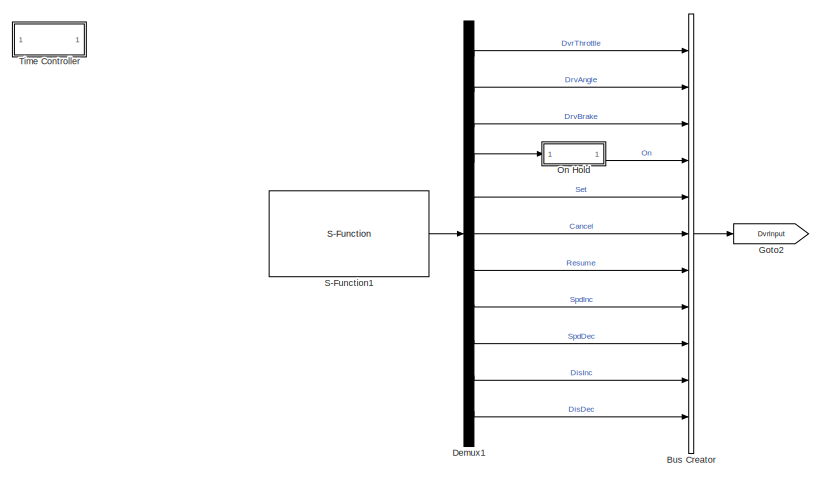
[diagram: root canvas - part 1/3, left side, full height]
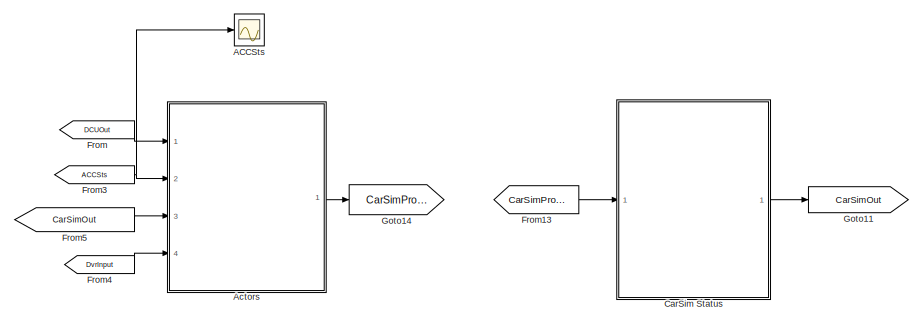
[diagram: root canvas - part 2/3, central region]
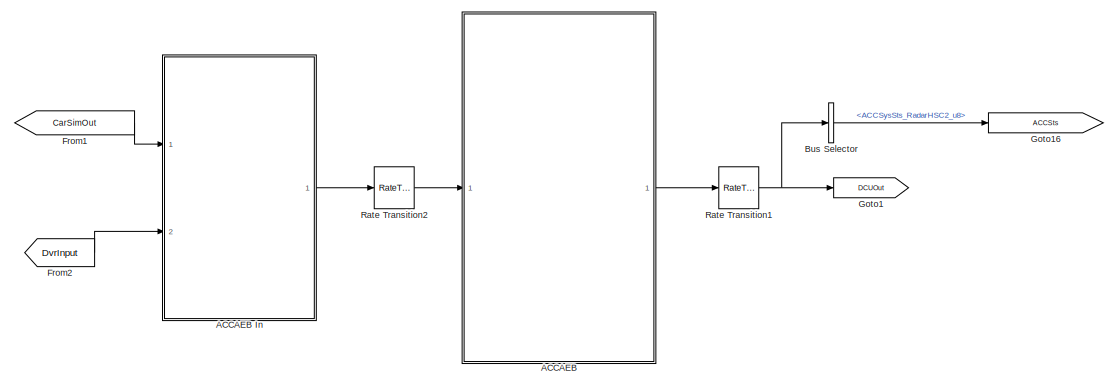
[diagram: root canvas - part 3/3, right side, full height]
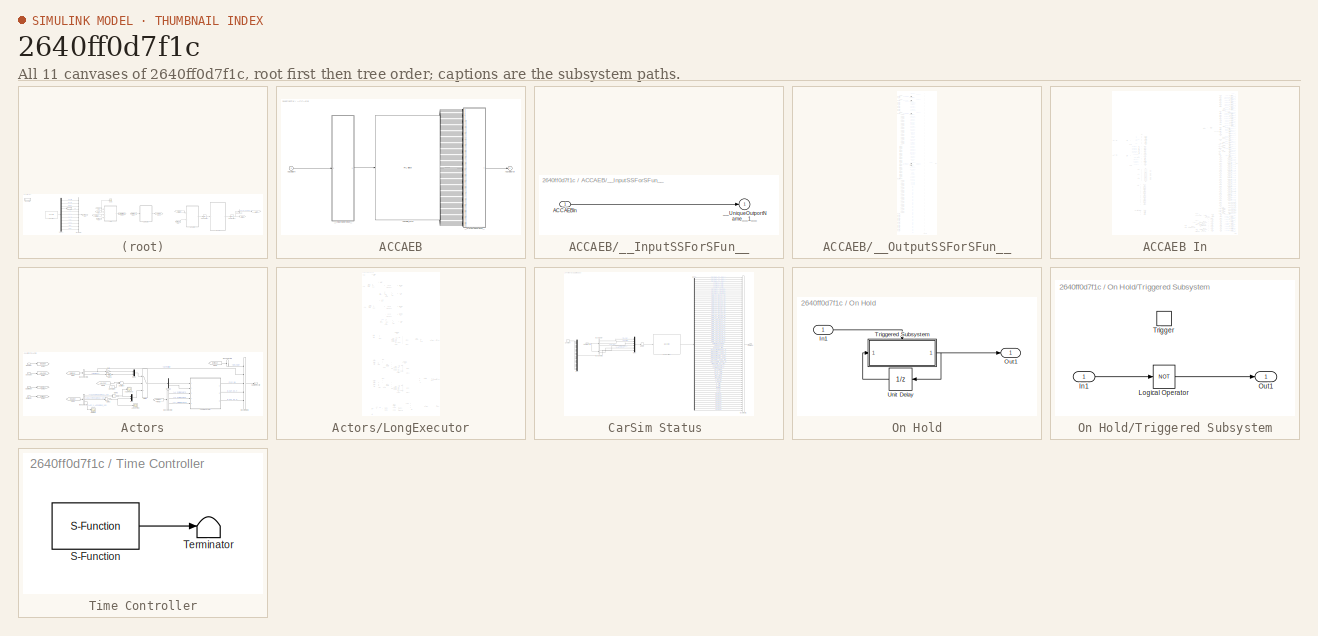
[diagram: thumbnail index - all 11 canvases of the model, root first then tree order]
MODEL slx_2640ff0d7f1c
KIND model
CONFIG AbsTol = 1e-6
CONFIG FixedStep = 0.001
CONFIG InitFcn = set_param(gcs,'StopTime','inf');
CONFIG MaxStep = auto
CONFIG MinStep = auto
CONFIG PreLoadFcn = PreSettings
CONFIG RelTol = 1e-3
CONFIG SampleTimeConstraint = Unconstrained
CONFIG Solver = FixedStepDiscrete
CONFIG SolverMode = SingleTasking
CONFIG SolverName = FixedStepDiscrete
CONFIG StartTime = 0
CONFIG StopTime = inf
BLOCK [SubSystem] ACCAEB
  DialogController = pil_create_dialog
  LoadFcn = try\n   if ~strcmp(rtw.pil.getPILVersion, '6.10 (R2016a)_12')\n      set_param(gcb, 'DialogController', '');\n      set_param(gcb, 'DialogControllerArgs', '');\n   end\ncatch e\n      set_param(gcb, 'DialogController', '');\n      set_param(gcb, 'DialogControllerArgs', '');\nend
  Ports = [1, 1]
  RequestExecContextInheritance = off
  Variant = off
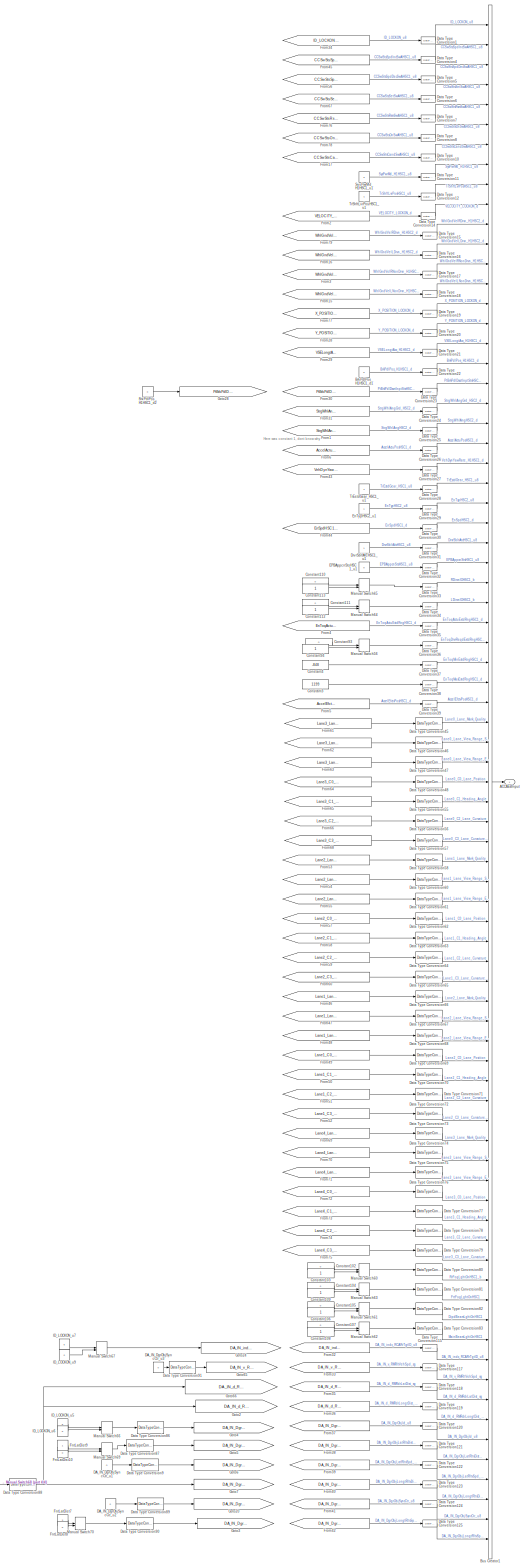
[diagram: ACCAEB In - part 1/4, right side, full height]
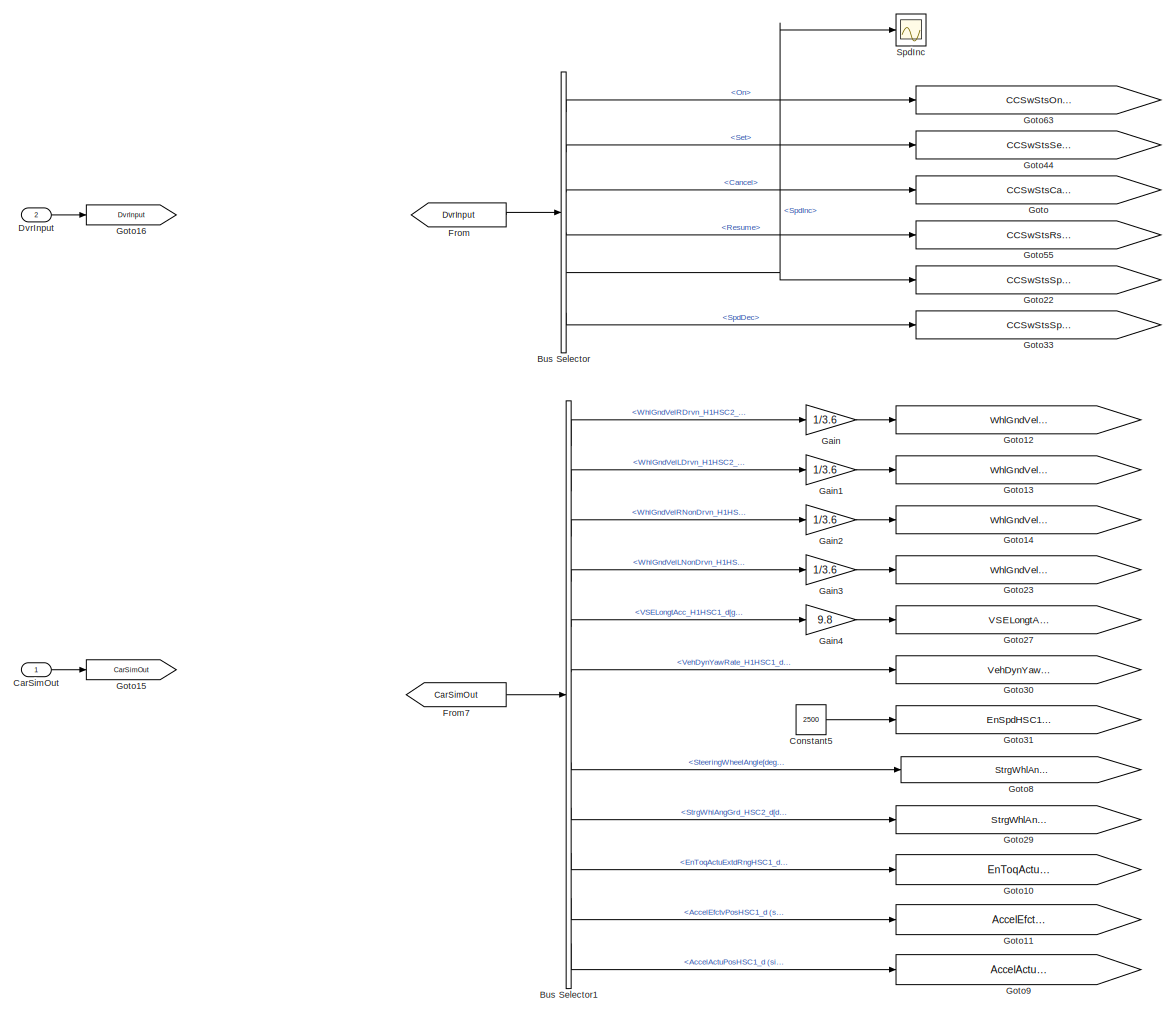
[diagram: ACCAEB In - part 2/4, middle left region]
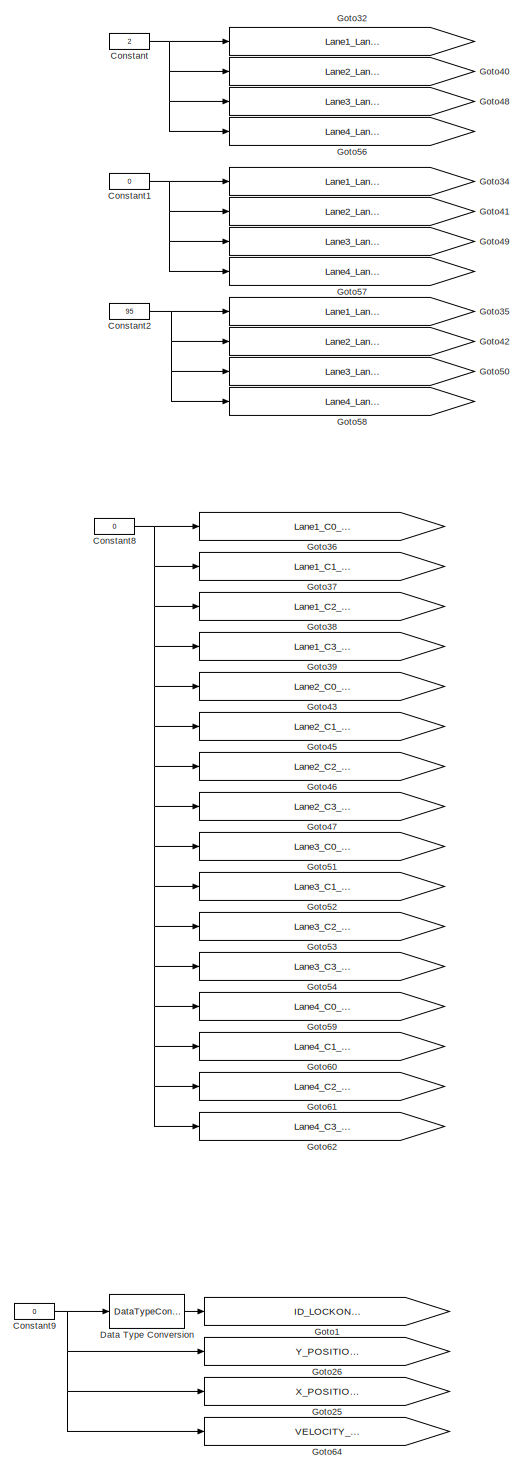
[diagram: ACCAEB In - part 3/4, bottom left region]
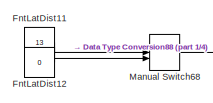
[diagram: ACCAEB In - part 4/4, bottom center region]
BLOCK [SubSystem] ACCAEB In
  Ports = [2, 1]
  RequestExecContextInheritance = off
  TreatAsAtomicUnit = on
  Variant = off
BLOCK [Outport] ACCAEB In/ACCAEBInput
  IconDisplay = Port number
  OutDataTypeStr = Bus: AccAebInputs
BLOCK [Constant] ACCAEB In/BrkPdlPos_H1HSC1_d1
  OutDataTypeStr = double
  Value = 0
BLOCK [Constant] ACCAEB In/BrkPdlPos_H1HSC1_d2
  OutDataTypeStr = uint8
  Value = 0
BLOCK [BusCreator] ACCAEB In/Bus Creator1
  DisplayOption = bar
  InheritFromInputs = on
  Inputs = 77
  Ports = [77, 1]
BLOCK [BusSelector] ACCAEB In/Bus Selector
  OutputSignals = On,Set,Cancel,Resume,SpdInc,SpdDec
  Ports = [1, 6]
BLOCK [BusSelector] ACCAEB In/Bus Selector1
  OutputSignals = WhlGndVelRDrvn_H1HSC2_d[km/h] (signal 38),WhlGndVelLDrvn_H1HSC2_d[km/h] (signal 39),WhlGndVelRNonDrvn_H1HSC2_d[km/h] (signal 40),WhlGndVelLNonDrvn_H1HSC2_d[km/h] (signal 41),VSELongtAcc_H1HSC1_d[g] (signal 42),VehDynYawRate_H1HSC1_d[deg/s] (signal 43),EnSpdHSC1_d[rpm] (signal 36),SteeringWheelAngle[deg] (signal 34),StrgWhlAngGrd_HSC2_d[deg/s] (signal 44),EnToqActuExtdRngHSC1_d[N M] (signal 37),Acc...<+59ch>
  Ports = [1, 12]
BLOCK [Inport] ACCAEB In/CarSimOut
  IconDisplay = Port number
BLOCK [Constant] ACCAEB In/Constant
  Value = 2
BLOCK [Constant] ACCAEB In/Constant1
  Value = 0
BLOCK [Constant] ACCAEB In/Constant102
  Value = 0
BLOCK [Constant] ACCAEB In/Constant103
BLOCK [Constant] ACCAEB In/Constant104
  Value = 0
BLOCK [Constant] ACCAEB In/Constant105
  Value = 0
BLOCK [Constant] ACCAEB In/Constant106
BLOCK [Constant] ACCAEB In/Constant107
  Value = 0
BLOCK [Constant] ACCAEB In/Constant108
BLOCK [Constant] ACCAEB In/Constant109
BLOCK [Constant] ACCAEB In/Constant110
  Value = 0
BLOCK [Constant] ACCAEB In/Constant111
  Value = 0
BLOCK [Constant] ACCAEB In/Constant112
BLOCK [Constant] ACCAEB In/Constant113
BLOCK [Constant] ACCAEB In/Constant2
  Value = 95
BLOCK [Constant] ACCAEB In/Constant3
  Value = 1199
BLOCK [Constant] ACCAEB In/Constant4
  Value = -848
BLOCK [Constant] ACCAEB In/Constant5
  Value = 2500
BLOCK [Constant] ACCAEB In/Constant8
  Value = 0
BLOCK [Constant] ACCAEB In/Constant9
  Value = 0
BLOCK [Constant] ACCAEB In/Constant93
  Value = 0
BLOCK [Constant] ACCAEB In/Constant94
BLOCK [Constant] ACCAEB In/DA_IN_DgrObjSyncCtr_u1
  OutDataTypeStr = uint8
  Value = 0
BLOCK [Constant] ACCAEB In/DA_IN_DgrObjSyncCtr_u2
  OutDataTypeStr = uint8
  Value = 0
BLOCK [Constant] ACCAEB In/DA_IN_DgrObjSyncCtr_u3
  OutDataTypeStr = uint8
  Value = 0
BLOCK [DataTypeConversion] ACCAEB In/Data Type Conversion
  OutDataTypeStr = uint8
  RndMeth = Floor
  SaturateOnIntegerOverflow = off
BLOCK [DataTypeConversion] ACCAEB In/Data Type Conversion1
  OutDataTypeStr = uint8
  RndMeth = Floor
  SaturateOnIntegerOverflow = off
BLOCK [DataTypeConversion] ACCAEB In/Data Type Conversion10
  OutDataTypeStr = uint8
  RndMeth = Floor
  SaturateOnIntegerOverflow = off
BLOCK [DataTypeConversion] ACCAEB In/Data Type Conversion11
  OutDataTypeStr = uint8
  RndMeth = Floor
  SaturateOnIntegerOverflow = off
BLOCK [DataTypeConversion] ACCAEB In/Data Type Conversion115
  OutDataTypeStr = uint8
  RndMeth = Floor
  SaturateOnIntegerOverflow = off
BLOCK [DataTypeConversion] ACCAEB In/Data Type Conversion117
  OutDataTypeStr = single
  RndMeth = Floor
  SaturateOnIntegerOverflow = off
BLOCK [DataTypeConversion] ACCAEB In/Data Type Conversion118
  OutDataTypeStr = single
  RndMeth = Floor
  SaturateOnIntegerOverflow = off
BLOCK [DataTypeConversion] ACCAEB In/Data Type Conversion119
  OutDataTypeStr = single
  RndMeth = Floor
  SaturateOnIntegerOverflow = off
BLOCK [DataTypeConversion] ACCAEB In/Data Type Conversion12
  OutDataTypeStr = uint8
  RndMeth = Floor
  SaturateOnIntegerOverflow = off
BLOCK [DataTypeConversion] ACCAEB In/Data Type Conversion120
  OutDataTypeStr = uint8
  RndMeth = Floor
  SaturateOnIntegerOverflow = off
BLOCK [DataTypeConversion] ACCAEB In/Data Type Conversion121
  OutDataTypeStr = single
  RndMeth = Floor
  SaturateOnIntegerOverflow = off
BLOCK [DataTypeConversion] ACCAEB In/Data Type Conversion122
  OutDataTypeStr = single
  RndMeth = Floor
  SaturateOnIntegerOverflow = off
BLOCK [DataTypeConversion] ACCAEB In/Data Type Conversion123
  OutDataTypeStr = single
  RndMeth = Floor
  SaturateOnIntegerOverflow = off
BLOCK [DataTypeConversion] ACCAEB In/Data Type Conversion124
  OutDataTypeStr = uint8
  RndMeth = Floor
  SaturateOnIntegerOverflow = off
BLOCK [DataTypeConversion] ACCAEB In/Data Type Conversion125
  OutDataTypeStr = single
  RndMeth = Floor
  SaturateOnIntegerOverflow = off
BLOCK [DataTypeConversion] ACCAEB In/Data Type Conversion14
  OutDataTypeStr = double
  RndMeth = Floor
  SaturateOnIntegerOverflow = off
BLOCK [DataTypeConversion] ACCAEB In/Data Type Conversion15
  OutDataTypeStr = double
  RndMeth = Floor
  SaturateOnIntegerOverflow = off
BLOCK [DataTypeConversion] ACCAEB In/Data Type Conversion16
  OutDataTypeStr = double
  RndMeth = Floor
  SaturateOnIntegerOverflow = off
BLOCK [DataTypeConversion] ACCAEB In/Data Type Conversion17
  OutDataTypeStr = double
  RndMeth = Floor
  SaturateOnIntegerOverflow = off
BLOCK [DataTypeConversion] ACCAEB In/Data Type Conversion18
  OutDataTypeStr = double
  RndMeth = Floor
  SaturateOnIntegerOverflow = off
BLOCK [DataTypeConversion] ACCAEB In/Data Type Conversion19
  OutDataTypeStr = double
  RndMeth = Floor
  SaturateOnIntegerOverflow = off
BLOCK [DataTypeConversion] ACCAEB In/Data Type Conversion20
  OutDataTypeStr = double
  RndMeth = Floor
  SaturateOnIntegerOverflow = off
BLOCK [DataTypeConversion] ACCAEB In/Data Type Conversion21
  OutDataTypeStr = double
  RndMeth = Floor
  SaturateOnIntegerOverflow = off
BLOCK [DataTypeConversion] ACCAEB In/Data Type Conversion22
  OutDataTypeStr = double
  RndMeth = Floor
  SaturateOnIntegerOverflow = off
BLOCK [DataTypeConversion] ACCAEB In/Data Type Conversion23
  OutDataTypeStr = uint8
  RndMeth = Floor
  SaturateOnIntegerOverflow = off
BLOCK [DataTypeConversion] ACCAEB In/Data Type Conversion24
  OutDataTypeStr = double
  RndMeth = Floor
  SaturateOnIntegerOverflow = off
BLOCK [DataTypeConversion] ACCAEB In/Data Type Conversion25
  OutDataTypeStr = double
  RndMeth = Floor
  SaturateOnIntegerOverflow = off
BLOCK [DataTypeConversion] ACCAEB In/Data Type Conversion26
  OutDataTypeStr = double
  RndMeth = Floor
  SaturateOnIntegerOverflow = off
BLOCK [DataTypeConversion] ACCAEB In/Data Type Conversion27
  OutDataTypeStr = double
  RndMeth = Floor
  SaturateOnIntegerOverflow = off
BLOCK [DataTypeConversion] ACCAEB In/Data Type Conversion28
  OutDataTypeStr = uint8
  RndMeth = Floor
  SaturateOnIntegerOverflow = off
BLOCK [DataTypeConversion] ACCAEB In/Data Type Conversion29
  OutDataTypeStr = uint8
  RndMeth = Floor
  SaturateOnIntegerOverflow = off
BLOCK [DataTypeConversion] ACCAEB In/Data Type Conversion30
  OutDataTypeStr = double
  RndMeth = Floor
  SaturateOnIntegerOverflow = off
BLOCK [DataTypeConversion] ACCAEB In/Data Type Conversion31
  OutDataTypeStr = uint8
  RndMeth = Floor
  SaturateOnIntegerOverflow = off
BLOCK [DataTypeConversion] ACCAEB In/Data Type Conversion32
  OutDataTypeStr = uint8
  RndMeth = Floor
  SaturateOnIntegerOverflow = off
BLOCK [DataTypeConversion] ACCAEB In/Data Type Conversion33
  OutDataTypeStr = boolean
  RndMeth = Floor
  SaturateOnIntegerOverflow = off
BLOCK [DataTypeConversion] ACCAEB In/Data Type Conversion34
  OutDataTypeStr = boolean
  RndMeth = Floor
  SaturateOnIntegerOverflow = off
BLOCK [DataTypeConversion] ACCAEB In/Data Type Conversion35
  OutDataTypeStr = double
  RndMeth = Floor
  SaturateOnIntegerOverflow = off
BLOCK [DataTypeConversion] ACCAEB In/Data Type Conversion36
  OutDataTypeStr = double
  RndMeth = Floor
  SaturateOnIntegerOverflow = off
BLOCK [DataTypeConversion] ACCAEB In/Data Type Conversion37
  OutDataTypeStr = double
  RndMeth = Floor
  SaturateOnIntegerOverflow = off
BLOCK [DataTypeConversion] ACCAEB In/Data Type Conversion38
  OutDataTypeStr = double
  RndMeth = Floor
  SaturateOnIntegerOverflow = off
BLOCK [DataTypeConversion] ACCAEB In/Data Type Conversion39
  OutDataTypeStr = double
  RndMeth = Floor
  SaturateOnIntegerOverflow = off
BLOCK [DataTypeConversion] ACCAEB In/Data Type Conversion4
  OutDataTypeStr = uint8
  RndMeth = Floor
  SaturateOnIntegerOverflow = off
BLOCK [DataTypeConversion] ACCAEB In/Data Type Conversion45
  OutDataTypeStr = uint8
  RndMeth = Floor
  SaturateOnIntegerOverflow = off
BLOCK [DataTypeConversion] ACCAEB In/Data Type Conversion46
  RndMeth = Floor
  SaturateOnIntegerOverflow = off
BLOCK [DataTypeConversion] ACCAEB In/Data Type Conversion47
  RndMeth = Floor
  SaturateOnIntegerOverflow = off
BLOCK [DataTypeConversion] ACCAEB In/Data Type Conversion48
  RndMeth = Floor
  SaturateOnIntegerOverflow = off
BLOCK [DataTypeConversion] ACCAEB In/Data Type Conversion5
  OutDataTypeStr = uint8
  RndMeth = Floor
  SaturateOnIntegerOverflow = off
BLOCK [DataTypeConversion] ACCAEB In/Data Type Conversion55
  RndMeth = Floor
  SaturateOnIntegerOverflow = off
BLOCK [DataTypeConversion] ACCAEB In/Data Type Conversion56
  RndMeth = Floor
  SaturateOnIntegerOverflow = off
BLOCK [DataTypeConversion] ACCAEB In/Data Type Conversion57
  RndMeth = Floor
  SaturateOnIntegerOverflow = off
BLOCK [DataTypeConversion] ACCAEB In/Data Type Conversion58
  OutDataTypeStr = uint8
  RndMeth = Floor
  SaturateOnIntegerOverflow = off
BLOCK [DataTypeConversion] ACCAEB In/Data Type Conversion6
  OutDataTypeStr = uint8
  RndMeth = Floor
  SaturateOnIntegerOverflow = off
BLOCK [DataTypeConversion] ACCAEB In/Data Type Conversion60
  RndMeth = Floor
  SaturateOnIntegerOverflow = off
BLOCK [DataTypeConversion] ACCAEB In/Data Type Conversion61
  RndMeth = Floor
  SaturateOnIntegerOverflow = off
BLOCK [DataTypeConversion] ACCAEB In/Data Type Conversion62
  RndMeth = Floor
  SaturateOnIntegerOverflow = off
BLOCK [DataTypeConversion] ACCAEB In/Data Type Conversion63
  RndMeth = Floor
  SaturateOnIntegerOverflow = off
BLOCK [DataTypeConversion] ACCAEB In/Data Type Conversion64
  RndMeth = Floor
  SaturateOnIntegerOverflow = off
BLOCK [DataTypeConversion] ACCAEB In/Data Type Conversion65
  RndMeth = Floor
  SaturateOnIntegerOverflow = off
BLOCK [DataTypeConversion] ACCAEB In/Data Type Conversion66
  OutDataTypeStr = uint8
  RndMeth = Floor
  SaturateOnIntegerOverflow = off
BLOCK [DataTypeConversion] ACCAEB In/Data Type Conversion67
  RndMeth = Floor
  SaturateOnIntegerOverflow = off
BLOCK [DataTypeConversion] ACCAEB In/Data Type Conversion68
  RndMeth = Floor
  SaturateOnIntegerOverflow = off
BLOCK [DataTypeConversion] ACCAEB In/Data Type Conversion69
  RndMeth = Floor
  SaturateOnIntegerOverflow = off
BLOCK [DataTypeConversion] ACCAEB In/Data Type Conversion7
  OutDataTypeStr = uint8
  RndMeth = Floor
  SaturateOnIntegerOverflow = off
BLOCK [DataTypeConversion] ACCAEB In/Data Type Conversion70
  RndMeth = Floor
  SaturateOnIntegerOverflow = off
BLOCK [DataTypeConversion] ACCAEB In/Data Type Conversion71
  RndMeth = Floor
  SaturateOnIntegerOverflow = off
BLOCK [DataTypeConversion] ACCAEB In/Data Type Conversion72
  RndMeth = Floor
  SaturateOnIntegerOverflow = off
BLOCK [DataTypeConversion] ACCAEB In/Data Type Conversion73
  OutDataTypeStr = uint8
  RndMeth = Floor
  SaturateOnIntegerOverflow = off
BLOCK [DataTypeConversion] ACCAEB In/Data Type Conversion74
  RndMeth = Floor
  SaturateOnIntegerOverflow = off
BLOCK [DataTypeConversion] ACCAEB In/Data Type Conversion75
  RndMeth = Floor
  SaturateOnIntegerOverflow = off
BLOCK [DataTypeConversion] ACCAEB In/Data Type Conversion76
  RndMeth = Floor
  SaturateOnIntegerOverflow = off
BLOCK [DataTypeConversion] ACCAEB In/Data Type Conversion77
  RndMeth = Floor
  SaturateOnIntegerOverflow = off
BLOCK [DataTypeConversion] ACCAEB In/Data Type Conversion78
  RndMeth = Floor
  SaturateOnIntegerOverflow = off
BLOCK [DataTypeConversion] ACCAEB In/Data Type Conversion79
  RndMeth = Floor
  SaturateOnIntegerOverflow = off
BLOCK [DataTypeConversion] ACCAEB In/Data Type Conversion8
  OutDataTypeStr = uint8
  RndMeth = Floor
  SaturateOnIntegerOverflow = off
BLOCK [DataTypeConversion] ACCAEB In/Data Type Conversion80
  OutDataTypeStr = boolean
  RndMeth = Floor
  SaturateOnIntegerOverflow = off
BLOCK [DataTypeConversion] ACCAEB In/Data Type Conversion81
  OutDataTypeStr = boolean
  RndMeth = Floor
  SaturateOnIntegerOverflow = off
BLOCK [DataTypeConversion] ACCAEB In/Data Type Conversion82
  OutDataTypeStr = boolean
  RndMeth = Floor
  SaturateOnIntegerOverflow = off
BLOCK [DataTypeConversion] ACCAEB In/Data Type Conversion83
  OutDataTypeStr = boolean
  RndMeth = Floor
  SaturateOnIntegerOverflow = off
BLOCK [DataTypeConversion] ACCAEB In/Data Type Conversion86
  OutDataTypeStr = uint8
  RndMeth = Floor
  SaturateOnIntegerOverflow = off
BLOCK [DataTypeConversion] ACCAEB In/Data Type Conversion87
  OutDataTypeStr = single
  RndMeth = Floor
  SaturateOnIntegerOverflow = off
BLOCK [DataTypeConversion] ACCAEB In/Data Type Conversion88
  OutDataTypeStr = single
  RndMeth = Floor
  SaturateOnIntegerOverflow = off
BLOCK [DataTypeConversion] ACCAEB In/Data Type Conversion89
  OutDataTypeStr = uint8
  RndMeth = Floor
  SaturateOnIntegerOverflow = off
BLOCK [DataTypeConversion] ACCAEB In/Data Type Conversion9
  OutDataTypeStr = single
  RndMeth = Floor
  SaturateOnIntegerOverflow = off
BLOCK [DataTypeConversion] ACCAEB In/Data Type Conversion90
  OutDataTypeStr = single
  RndMeth = Floor
  SaturateOnIntegerOverflow = off
BLOCK [DataTypeConversion] ACCAEB In/Data Type Conversion91
  OutDataTypeStr = single
  RndMeth = Floor
  SaturateOnIntegerOverflow = off
BLOCK [Constant] ACCAEB In/DrvrSbltAtcHSC1_u1
  OutDataTypeStr = uint8
BLOCK [Inport] ACCAEB In/DvrInput
  IconDisplay = Port number
  Port = 2
BLOCK [Constant] ACCAEB In/EPBAppcnStsHSC1_u1
  OutDataTypeStr = uint8
  Value = 0
BLOCK [Constant] ACCAEB In/EnTypHSC2_u1
  OutDataTypeStr = uint8
BLOCK [Constant] ACCAEB In/FntLatDist10
  AttributesFormatString = %<OutDataTypeStr>
  OutDataTypeStr = double
  Value = 0
BLOCK [Constant] ACCAEB In/FntLatDist11
  AttributesFormatString = %<OutDataTypeStr>
  OutDataTypeStr = double
  Value = 13
BLOCK [Constant] ACCAEB In/FntLatDist12
  AttributesFormatString = %<OutDataTypeStr>
  OutDataTypeStr = double
  Value = 0
BLOCK [Constant] ACCAEB In/FntLatDist7
  AttributesFormatString = %<OutDataTypeStr>
  OutDataTypeStr = double
  Value = 3
BLOCK [Constant] ACCAEB In/FntLatDist8
  AttributesFormatString = %<OutDataTypeStr>
  OutDataTypeStr = double
  Value = 0
BLOCK [Constant] ACCAEB In/FntLatDist9
  AttributesFormatString = %<OutDataTypeStr>
  OutDataTypeStr = double
BLOCK [From] ACCAEB In/From
  GotoTag = DvrInput
BLOCK [From] ACCAEB In/From1
  GotoTag = StrgWhlAngHSC2_d
BLOCK [From] ACCAEB In/From15
  GotoTag = WhlGndVelLNonDrvn_H1HSC2_d
BLOCK [From] ACCAEB In/From16
  GotoTag = WhlGndVelLDrvn_H1HSC2_d
BLOCK [From] ACCAEB In/From17
  GotoTag = CCSwStsCanclSwAHSC1_u8
BLOCK [From] ACCAEB In/From2
  GotoTag = VELOCITY_LOCKON_d
BLOCK [From] ACCAEB In/From28
  GotoTag = Y_POSITION_LOCKON_d
BLOCK [From] ACCAEB In/From29
  GotoTag = VSELongtAcc_H1HSC1_d
BLOCK [From] ACCAEB In/From3
  GotoTag = WhlGndVelRNonDrvn_H1HSC2_d
BLOCK [From] ACCAEB In/From30
  GotoTag = PtBrkPdlDscrtInptStsHSC1_u8
BLOCK [From] ACCAEB In/From31
  GotoTag = StrgWhlAngGrd_HSC2_d
BLOCK [From] ACCAEB In/From32
  GotoTag = DA_IN_indx_RCARrTgtID_u8
BLOCK [From] ACCAEB In/From33
  GotoTag = DA_IN_v_RMRltVehSpd_sg
BLOCK [From] ACCAEB In/From34
  GotoTag = ID_LOCKON_u8
BLOCK [From] ACCAEB In/From35
  GotoTag = DA_IN_d_RMRdrLatDist_sg
BLOCK [From] ACCAEB In/From36
  GotoTag = DA_IN_d_RMRdrLongtDist_sg
BLOCK [From] ACCAEB In/From37
  GotoTag = DA_IN_DgrObjId_u8
BLOCK [From] ACCAEB In/From38
  GotoTag = DA_IN_DgrObjLatRltvDist_sg
BLOCK [From] ACCAEB In/From39
  GotoTag = DA_IN_DgrObjLatRltvSpd_sg
BLOCK [From] ACCAEB In/From4
  GotoTag = EnToqActuExtdRngHSC1_d
BLOCK [From] ACCAEB In/From40
  GotoTag = DA_IN_DgrObjLongtRltvDist_sg
BLOCK [From] ACCAEB In/From41
  GotoTag = DA_IN_DgrObjSyncCtr_u8
BLOCK [From] ACCAEB In/From42
  GotoTag = DA_IN_DgrObjLongtRltvSpd_sg
BLOCK [From] ACCAEB In/From43
  GotoTag = VehDynYawRate_H1HSC1_d
BLOCK [From] ACCAEB In/From44
  GotoTag = EnSpdHSC1_d
BLOCK [From] ACCAEB In/From45
  GotoTag = CCSwStsSpdIncSwAHSC1_u8
BLOCK [From] ACCAEB In/From46
  GotoTag = Lane1_Lane_Mark_Quality
BLOCK [From] ACCAEB In/From47
  GotoTag = Lane1_Lane_View_Range_Start
BLOCK [From] ACCAEB In/From48
  GotoTag = Lane1_Lane_View_Range_End
BLOCK [From] ACCAEB In/From49
  GotoTag = Lane1_C0_Lane_Position
BLOCK [From] ACCAEB In/From5
  GotoTag = AccelEfctvPosHSC1_d
BLOCK [From] ACCAEB In/From50
  GotoTag = Lane1_C1_Heading_Angle
BLOCK [From] ACCAEB In/From51
  GotoTag = Lane1_C2_Lane_Curvature
BLOCK [From] ACCAEB In/From52
  GotoTag = Lane1_C3_Lane_Curvature_Driv
BLOCK [From] ACCAEB In/From53
  GotoTag = Lane2_Lane_Mark_Quality
BLOCK [From] ACCAEB In/From54
  GotoTag = Lane2_Lane_View_Range_Start
BLOCK [From] ACCAEB In/From55
  GotoTag = Lane2_Lane_View_Range_End
BLOCK [From] ACCAEB In/From56
  GotoTag = CCSwStsSpdDecSwAHSC1_u8
BLOCK [From] ACCAEB In/From57
  GotoTag = Lane2_C0_Lane_Position
BLOCK [From] ACCAEB In/From58
  GotoTag = Lane2_C1_Heading_Angle
BLOCK [From] ACCAEB In/From59
  GotoTag = Lane2_C2_Lane_Curvature
BLOCK [From] ACCAEB In/From6
  GotoTag = AccelActuPosHSC1_d
BLOCK [From] ACCAEB In/From60
  GotoTag = Lane2_C3_Lane_Curvature_Driv
BLOCK [From] ACCAEB In/From61
  GotoTag = Lane3_Lane_Mark_Quality
BLOCK [From] ACCAEB In/From62
  GotoTag = Lane3_Lane_View_Range_Start
BLOCK [From] ACCAEB In/From63
  GotoTag = Lane3_Lane_View_Range_End
BLOCK [From] ACCAEB In/From64
  GotoTag = Lane3_C0_Lane_Position
BLOCK [From] ACCAEB In/From65
  GotoTag = Lane3_C1_Heading_Angle
BLOCK [From] ACCAEB In/From66
  GotoTag = Lane3_C2_Lane_Curvature
BLOCK [From] ACCAEB In/From67
  GotoTag = CCSwStsSetSwAHSC1_u8
BLOCK [From] ACCAEB In/From68
  GotoTag = Lane3_C3_Lane_Curvature_Driv
BLOCK [From] ACCAEB In/From69
  GotoTag = Lane4_Lane_Mark_Quality
BLOCK [From] ACCAEB In/From7
  GotoTag = CarSimOut
BLOCK [From] ACCAEB In/From70
  GotoTag = Lane4_Lane_View_Range_Start
BLOCK [From] ACCAEB In/From71
  GotoTag = Lane4_Lane_View_Range_End
BLOCK [From] ACCAEB In/From72
  GotoTag = Lane4_C0_Lane_Position
BLOCK [From] ACCAEB In/From73
  GotoTag = Lane4_C1_Heading_Angle
BLOCK [From] ACCAEB In/From74
  GotoTag = Lane4_C2_Lane_Curvature
BLOCK [From] ACCAEB In/From75
  GotoTag = Lane4_C3_Lane_Curvature_Driv
BLOCK [From] ACCAEB In/From76
  GotoTag = CCSwStsRsmSwAHSC1_u8
BLOCK [From] ACCAEB In/From77
  GotoTag = X_POSITION_LOCKON_d
BLOCK [From] ACCAEB In/From78
  GotoTag = CCSwStsOnSwAHSC1_u8
BLOCK [From] ACCAEB In/From79
  GotoTag = WhlGndVelRDrvn_H1HSC2_d
BLOCK [Gain] ACCAEB In/Gain
  Gain = 1/3.6
  OutDataTypeStr = Inherit: Inherit via internal rule
  ParamDataTypeStr = Inherit: Inherit via internal rule
  SaturateOnIntegerOverflow = off
BLOCK [Gain] ACCAEB In/Gain1
  Gain = 1/3.6
  OutDataTypeStr = Inherit: Inherit via internal rule
  ParamDataTypeStr = Inherit: Inherit via internal rule
  SaturateOnIntegerOverflow = off
BLOCK [Gain] ACCAEB In/Gain2
  Gain = 1/3.6
  OutDataTypeStr = Inherit: Inherit via internal rule
  ParamDataTypeStr = Inherit: Inherit via internal rule
  SaturateOnIntegerOverflow = off
BLOCK [Gain] ACCAEB In/Gain3
  Gain = 1/3.6
  OutDataTypeStr = Inherit: Inherit via internal rule
  ParamDataTypeStr = Inherit: Inherit via internal rule
  SaturateOnIntegerOverflow = off
BLOCK [Gain] ACCAEB In/Gain4
  Gain = 9.8
  OutDataTypeStr = Inherit: Inherit via internal rule
  ParamDataTypeStr = Inherit: Inherit via internal rule
  SaturateOnIntegerOverflow = off
BLOCK [Goto] ACCAEB In/Goto
  GotoTag = CCSwStsCanclSwAHSC1_u8
BLOCK [Goto] ACCAEB In/Goto1
  GotoTag = ID_LOCKON_u8
BLOCK [Goto] ACCAEB In/Goto10
  GotoTag = EnToqActuExtdRngHSC1_d
BLOCK [Goto] ACCAEB In/Goto11
  GotoTag = AccelEfctvPosHSC1_d
BLOCK [Goto] ACCAEB In/Goto12
  GotoTag = WhlGndVelRDrvn_H1HSC2_d
BLOCK [Goto] ACCAEB In/Goto13
  GotoTag = WhlGndVelLDrvn_H1HSC2_d
BLOCK [Goto] ACCAEB In/Goto14
  GotoTag = WhlGndVelRNonDrvn_H1HSC2_d
BLOCK [Goto] ACCAEB In/Goto15
  GotoTag = CarSimOut
BLOCK [Goto] ACCAEB In/Goto16
  GotoTag = DvrInput
BLOCK [Goto] ACCAEB In/Goto2
  GotoTag = DA_IN_d_RMRdrLongtDist_sg
BLOCK [Goto] ACCAEB In/Goto20
  GotoTag = DA_IN_DgrObjSyncCtr_u8
BLOCK [Goto] ACCAEB In/Goto22
  GotoTag = CCSwStsSpdIncSwAHSC1_u8
BLOCK [Goto] ACCAEB In/Goto23
  GotoTag = WhlGndVelLNonDrvn_H1HSC2_d
BLOCK [Goto] ACCAEB In/Goto24
  GotoTag = DA_IN_indx_RCARrTgtID_u8
BLOCK [Goto] ACCAEB In/Goto25
  GotoTag = X_POSITION_LOCKON_d
BLOCK [Goto] ACCAEB In/Goto26
  GotoTag = Y_POSITION_LOCKON_d
BLOCK [Goto] ACCAEB In/Goto27
  GotoTag = VSELongtAcc_H1HSC1_d
BLOCK [Goto] ACCAEB In/Goto28
  GotoTag = PtBrkPdlDscrtInptStsHSC1_u8
BLOCK [Goto] ACCAEB In/Goto29
  GotoTag = StrgWhlAngGrd_HSC2_d
BLOCK [Goto] ACCAEB In/Goto3
  GotoTag = DA_IN_DgrObjLongtRltvSpd_sg
BLOCK [Goto] ACCAEB In/Goto30
  GotoTag = VehDynYawRate_H1HSC1_d
BLOCK [Goto] ACCAEB In/Goto31
  GotoTag = EnSpdHSC1_d
BLOCK [Goto] ACCAEB In/Goto32
  GotoTag = Lane1_Lane_Mark_Quality
BLOCK [Goto] ACCAEB In/Goto33
  GotoTag = CCSwStsSpdDecSwAHSC1_u8
BLOCK [Goto] ACCAEB In/Goto34
  GotoTag = Lane1_Lane_View_Range_Start
BLOCK [Goto] ACCAEB In/Goto35
  GotoTag = Lane1_Lane_View_Range_End
BLOCK [Goto] ACCAEB In/Goto36
  GotoTag = Lane1_C0_Lane_Position
BLOCK [Goto] ACCAEB In/Goto37
  GotoTag = Lane1_C1_Heading_Angle
BLOCK [Goto] ACCAEB In/Goto38
  GotoTag = Lane1_C2_Lane_Curvature
BLOCK [Goto] ACCAEB In/Goto39
  GotoTag = Lane1_C3_Lane_Curvature_Driv
BLOCK [Goto] ACCAEB In/Goto4
  GotoTag = DA_IN_DgrObjId_u8
BLOCK [Goto] ACCAEB In/Goto40
  GotoTag = Lane2_Lane_Mark_Quality
BLOCK [Goto] ACCAEB In/Goto41
  GotoTag = Lane2_Lane_View_Range_Start
BLOCK [Goto] ACCAEB In/Goto42
  GotoTag = Lane2_Lane_View_Range_End
BLOCK [Goto] ACCAEB In/Goto43
  GotoTag = Lane2_C0_Lane_Position
BLOCK [Goto] ACCAEB In/Goto44
  GotoTag = CCSwStsSetSwAHSC1_u8
BLOCK [Goto] ACCAEB In/Goto45
  GotoTag = Lane2_C1_Heading_Angle
BLOCK [Goto] ACCAEB In/Goto46
  GotoTag = Lane2_C2_Lane_Curvature
BLOCK [Goto] ACCAEB In/Goto47
  GotoTag = Lane2_C3_Lane_Curvature_Driv
BLOCK [Goto] ACCAEB In/Goto48
  GotoTag = Lane3_Lane_Mark_Quality
BLOCK [Goto] ACCAEB In/Goto49
  GotoTag = Lane3_Lane_View_Range_Start
BLOCK [Goto] ACCAEB In/Goto5
  GotoTag = DA_IN_DgrObjLatRltvDist_sg
BLOCK [Goto] ACCAEB In/Goto50
  GotoTag = Lane3_Lane_View_Range_End
BLOCK [Goto] ACCAEB In/Goto51
  GotoTag = Lane3_C0_Lane_Position
BLOCK [Goto] ACCAEB In/Goto52
  GotoTag = Lane3_C1_Heading_Angle
BLOCK [Goto] ACCAEB In/Goto53
  GotoTag = Lane3_C2_Lane_Curvature
BLOCK [Goto] ACCAEB In/Goto54
  GotoTag = Lane3_C3_Lane_Curvature_Driv
BLOCK [Goto] ACCAEB In/Goto55
  GotoTag = CCSwStsRsmSwAHSC1_u8
BLOCK [Goto] ACCAEB In/Goto56
  GotoTag = Lane4_Lane_Mark_Quality
BLOCK [Goto] ACCAEB In/Goto57
  GotoTag = Lane4_Lane_View_Range_Start
BLOCK [Goto] ACCAEB In/Goto58
  GotoTag = Lane4_Lane_View_Range_End
BLOCK [Goto] ACCAEB In/Goto59
  GotoTag = Lane4_C0_Lane_Position
BLOCK [Goto] ACCAEB In/Goto6
  GotoTag = DA_IN_DgrObjLatRltvSpd_sg
BLOCK [Goto] ACCAEB In/Goto60
  GotoTag = Lane4_C1_Heading_Angle
BLOCK [Goto] ACCAEB In/Goto61
  GotoTag = Lane4_C2_Lane_Curvature
BLOCK [Goto] ACCAEB In/Goto62
  GotoTag = Lane4_C3_Lane_Curvature_Driv
BLOCK [Goto] ACCAEB In/Goto63
  GotoTag = CCSwStsOnSwAHSC1_u8
BLOCK [Goto] ACCAEB In/Goto64
  GotoTag = VELOCITY_LOCKON_d
BLOCK [Goto] ACCAEB In/Goto65
  GotoTag = DA_IN_v_RMRltVehSpd_sg
BLOCK [Goto] ACCAEB In/Goto66
  GotoTag = DA_IN_d_RMRdrLatDist_sg
BLOCK [Goto] ACCAEB In/Goto7
  GotoTag = DA_IN_DgrObjLongtRltvDist_sg
BLOCK [Goto] ACCAEB In/Goto8
  GotoTag = StrgWhlAngHSC2_d
BLOCK [Goto] ACCAEB In/Goto9
  GotoTag = AccelActuPosHSC1_d
BLOCK [Constant] ACCAEB In/ID_LOCKON_u5
  OutDataTypeStr = uint8
  Value = 5
BLOCK [Constant] ACCAEB In/ID_LOCKON_u6
  OutDataTypeStr = uint8
  Value = 0
BLOCK [Constant] ACCAEB In/ID_LOCKON_u7
  OutDataTypeStr = uint8
  Value = 5
BLOCK [Constant] ACCAEB In/ID_LOCKON_u9
  OutDataTypeStr = uint8
  Value = 0
BLOCK [ManualSwitch] ACCAEB In/Manual Switch56
BLOCK [ManualSwitch] ACCAEB In/Manual Switch60
BLOCK [ManualSwitch] ACCAEB In/Manual Switch61
BLOCK [ManualSwitch] ACCAEB In/Manual Switch62
BLOCK [ManualSwitch] ACCAEB In/Manual Switch63
BLOCK [ManualSwitch] ACCAEB In/Manual Switch64
BLOCK [ManualSwitch] ACCAEB In/Manual Switch65
BLOCK [ManualSwitch] ACCAEB In/Manual Switch66
BLOCK [ManualSwitch] ACCAEB In/Manual Switch67
BLOCK [ManualSwitch] ACCAEB In/Manual Switch68
BLOCK [ManualSwitch] ACCAEB In/Manual Switch69
BLOCK [ManualSwitch] ACCAEB In/Manual Switch70
BLOCK [Scope] ACCAEB In/SpdInc
  Ports = [1]
  ScopeSpecificationString = Simulink.scopes.TimeScopeBlockCfg('CurrentConfiguration', extmgr.ConfigurationSet(extmgr.Configuration('Core','General UI',true),extmgr.Configuration('Core','Source UI',true),extmgr.Configuration('Sources','WiredSimulink',true),extmgr.Configuration('Visuals','Time Domain',true,'SerializedDisplays',{struct('MinYLimReal','-1.00000','MaxYLimReal','1.00000','YLabelReal','','MinYLimMag','0.00000','MaxY...<+1358ch>
BLOCK [Constant] ACCAEB In/SysPwrMd_H1HSC1_u1
  AttributesFormatString = %<DataType=%<OutDataTypeStr>>
  OutDataTypeStr = uint8
  Value = 3
BLOCK [Constant] ACCAEB In/TrEstdGear_HSC1_u1
  OutDataTypeStr = uint8
  Value = 4
BLOCK [Constant] ACCAEB In/TrShftLvrPosHSC1_u1
  OutDataTypeStr = uint8
  Value = 4
BLOCK [Inport] ACCAEB/ACCAEBIn
  BusOutputAsStruct = on
  IconDisplay = Port number
  OutDataTypeStr = Bus: AccAebInputs
BLOCK [Outport] ACCAEB/ACCAEBOut
  IconDisplay = Port number
BLOCK [Reference] ACCAEB/ACCAEB_sfcn  REF=pil_lib/PIL Block
  Ports = [1, 98]
  SourceBlock = pil_lib/PIL Block
BLOCK [SubSystem] ACCAEB/__InputSSForSFun__
  PermitHierarchicalResolution = ExplicitOnly
  Ports = [1, 1]
  RequestExecContextInheritance = off
  Variant = off
BLOCK [Inport] ACCAEB/__InputSSForSFun__/ACCAEBIn
  BusOutputAsStruct = on
  IconDisplay = Port number
  OutDataTypeStr = Bus: AccAebInputs
BLOCK [Outport] ACCAEB/__InputSSForSFun__/__UniqueOutportName__1__
  IconDisplay = Port number
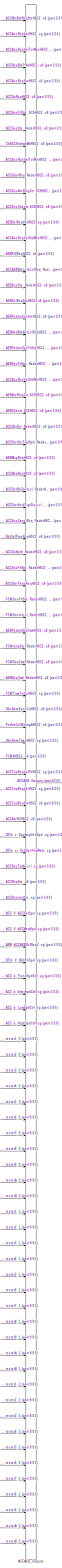
[diagram: ACCAEB/__OutputSSForSFun__ - part 1/10, right side, full height]
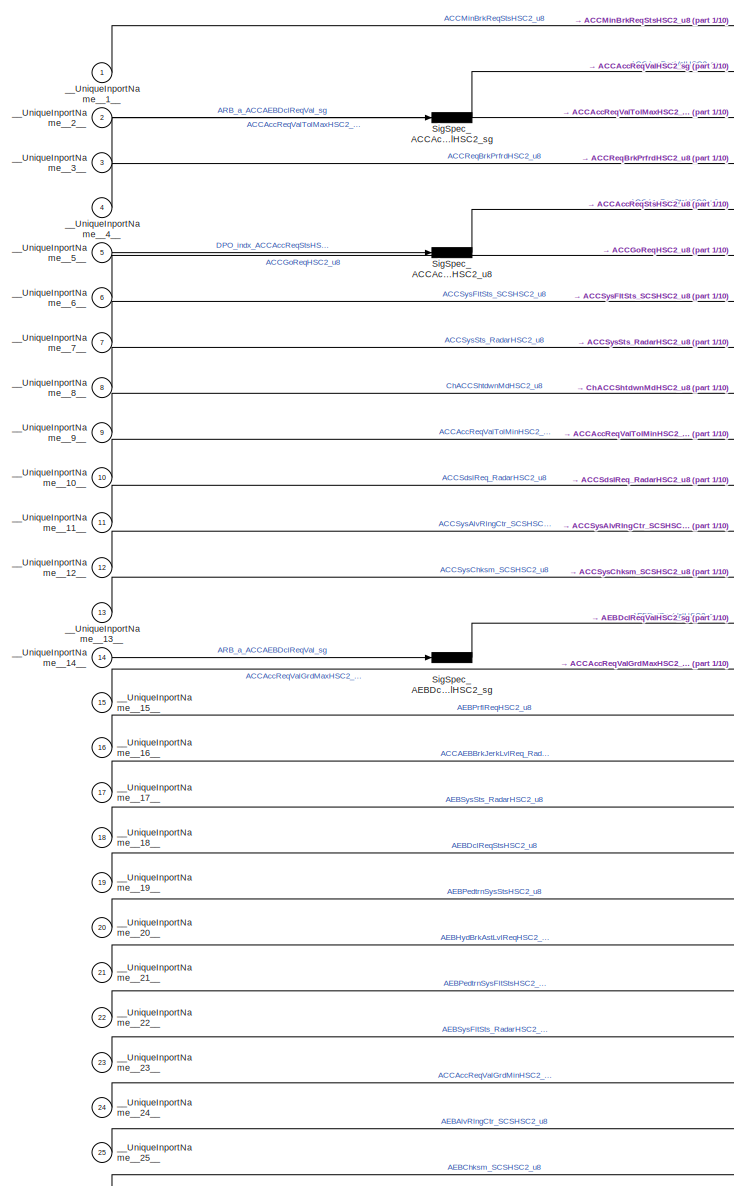
[diagram: ACCAEB/__OutputSSForSFun__ - part 2/10, top left region]
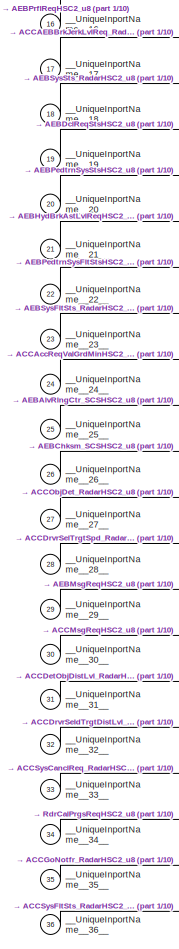
[diagram: ACCAEB/__OutputSSForSFun__ - part 3/10, top left region]
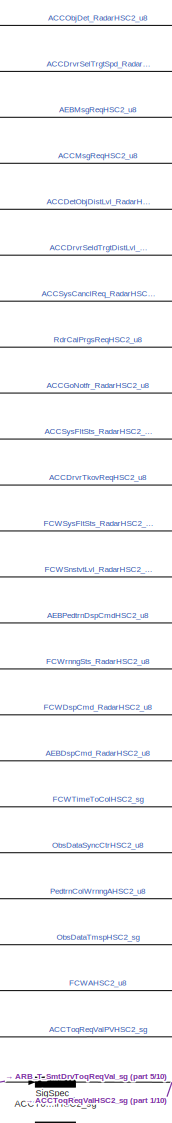
[diagram: ACCAEB/__OutputSSForSFun__ - part 4/10, central region]
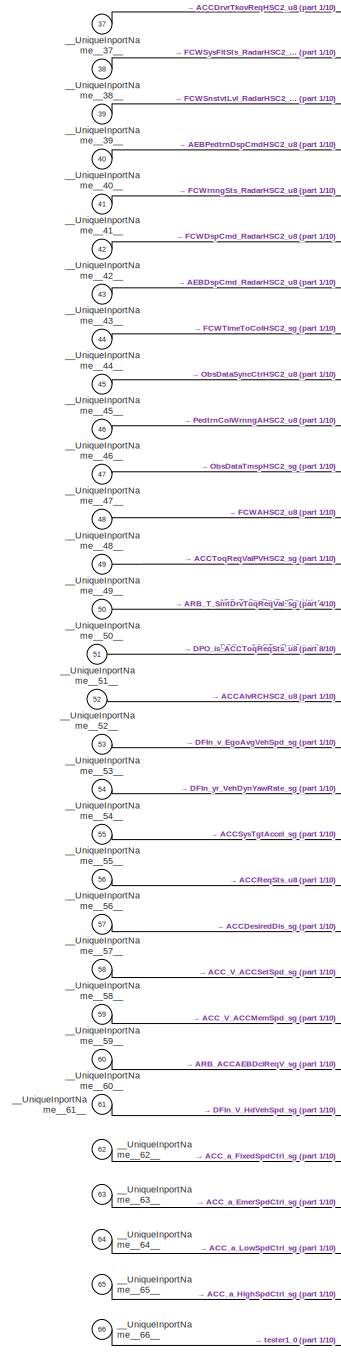
[diagram: ACCAEB/__OutputSSForSFun__ - part 5/10, middle left region]
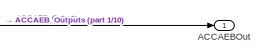
[diagram: ACCAEB/__OutputSSForSFun__ - part 6/10, middle right region]
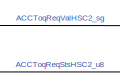
[diagram: ACCAEB/__OutputSSForSFun__ - part 7/10, central region]
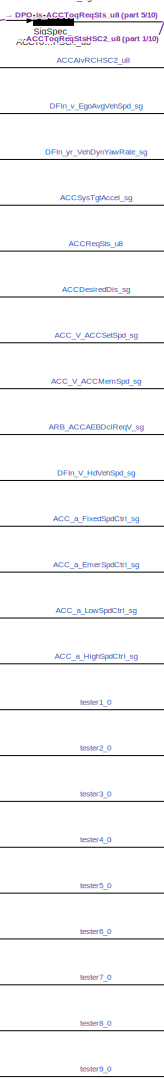
[diagram: ACCAEB/__OutputSSForSFun__ - part 8/10, central region]
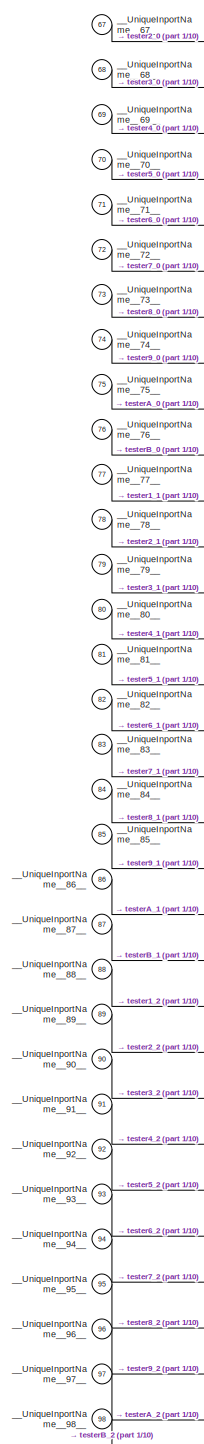
[diagram: ACCAEB/__OutputSSForSFun__ - part 9/10, bottom left region]
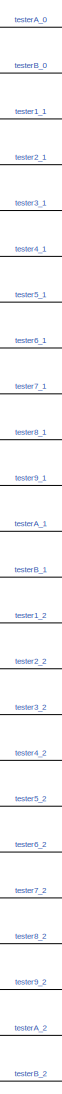
[diagram: ACCAEB/__OutputSSForSFun__ - part 10/10, bottom center region]
BLOCK [SubSystem] ACCAEB/__OutputSSForSFun__
  PermitHierarchicalResolution = ExplicitOnly
  Ports = [98, 1]
  RequestExecContextInheritance = off
  Variant = off
BLOCK [Outport] ACCAEB/__OutputSSForSFun__/ACCAEBOut
  IconDisplay = Port number
BLOCK [BusCreator] ACCAEB/__OutputSSForSFun__/ACCAEB_Outputs
  InheritFromInputs = on
  Inputs = 98
  Ports = [98, 1]
BLOCK [Demux] ACCAEB/__OutputSSForSFun__/SigSpec_ACCAccReqStsHSC2_u8
  Outputs = 1
  Ports = [1, 1]
BLOCK [Demux] ACCAEB/__OutputSSForSFun__/SigSpec_ACCAccReqValHSC2_sg
  Outputs = 1
  Ports = [1, 1]
BLOCK [Demux] ACCAEB/__OutputSSForSFun__/SigSpec_ACCToqReqStsHSC2_u8
  Outputs = 1
  Ports = [1, 1]
BLOCK [Demux] ACCAEB/__OutputSSForSFun__/SigSpec_ACCToqReqValHSC2_sg
  Outputs = 1
  Ports = [1, 1]
BLOCK [Demux] ACCAEB/__OutputSSForSFun__/SigSpec_AEBDclReqValHSC2_sg
  Outputs = 1
  Ports = [1, 1]
BLOCK [Inport] ACCAEB/__OutputSSForSFun__/__UniqueInportName__10__
  IconDisplay = Port number
  Port = 10
BLOCK [Inport] ACCAEB/__OutputSSForSFun__/__UniqueInportName__11__
  IconDisplay = Port number
  Port = 11
BLOCK [Inport] ACCAEB/__OutputSSForSFun__/__UniqueInportName__12__
  IconDisplay = Port number
  Port = 12
BLOCK [Inport] ACCAEB/__OutputSSForSFun__/__UniqueInportName__13__
  IconDisplay = Port number
  Port = 13
BLOCK [Inport] ACCAEB/__OutputSSForSFun__/__UniqueInportName__14__
  IconDisplay = Port number
  Port = 14
BLOCK [Inport] ACCAEB/__OutputSSForSFun__/__UniqueInportName__15__
  IconDisplay = Port number
  Port = 15
BLOCK [Inport] ACCAEB/__OutputSSForSFun__/__UniqueInportName__16__
  IconDisplay = Port number
  Port = 16
BLOCK [Inport] ACCAEB/__OutputSSForSFun__/__UniqueInportName__17__
  IconDisplay = Port number
  Port = 17
BLOCK [Inport] ACCAEB/__OutputSSForSFun__/__UniqueInportName__18__
  IconDisplay = Port number
  Port = 18
BLOCK [Inport] ACCAEB/__OutputSSForSFun__/__UniqueInportName__19__
  IconDisplay = Port number
  Port = 19
BLOCK [Inport] ACCAEB/__OutputSSForSFun__/__UniqueInportName__1__
  IconDisplay = Port number
BLOCK [Inport] ACCAEB/__OutputSSForSFun__/__UniqueInportName__20__
  IconDisplay = Port number
  Port = 20
BLOCK [Inport] ACCAEB/__OutputSSForSFun__/__UniqueInportName__21__
  IconDisplay = Port number
  Port = 21
BLOCK [Inport] ACCAEB/__OutputSSForSFun__/__UniqueInportName__22__
  IconDisplay = Port number
  Port = 22
BLOCK [Inport] ACCAEB/__OutputSSForSFun__/__UniqueInportName__23__
  IconDisplay = Port number
  Port = 23
BLOCK [Inport] ACCAEB/__OutputSSForSFun__/__UniqueInportName__24__
  IconDisplay = Port number
  Port = 24
BLOCK [Inport] ACCAEB/__OutputSSForSFun__/__UniqueInportName__25__
  IconDisplay = Port number
  Port = 25
BLOCK [Inport] ACCAEB/__OutputSSForSFun__/__UniqueInportName__26__
  IconDisplay = Port number
  Port = 26
BLOCK [Inport] ACCAEB/__OutputSSForSFun__/__UniqueInportName__27__
  IconDisplay = Port number
  Port = 27
BLOCK [Inport] ACCAEB/__OutputSSForSFun__/__UniqueInportName__28__
  IconDisplay = Port number
  Port = 28
BLOCK [Inport] ACCAEB/__OutputSSForSFun__/__UniqueInportName__29__
  IconDisplay = Port number
  Port = 29
BLOCK [Inport] ACCAEB/__OutputSSForSFun__/__UniqueInportName__2__
  IconDisplay = Port number
  Port = 2
BLOCK [Inport] ACCAEB/__OutputSSForSFun__/__UniqueInportName__30__
  IconDisplay = Port number
  Port = 30
BLOCK [Inport] ACCAEB/__OutputSSForSFun__/__UniqueInportName__31__
  IconDisplay = Port number
  Port = 31
BLOCK [Inport] ACCAEB/__OutputSSForSFun__/__UniqueInportName__32__
  IconDisplay = Port number
  Port = 32
BLOCK [Inport] ACCAEB/__OutputSSForSFun__/__UniqueInportName__33__
  IconDisplay = Port number
  Port = 33
BLOCK [Inport] ACCAEB/__OutputSSForSFun__/__UniqueInportName__34__
  IconDisplay = Port number
  Port = 34
BLOCK [Inport] ACCAEB/__OutputSSForSFun__/__UniqueInportName__35__
  IconDisplay = Port number
  Port = 35
BLOCK [Inport] ACCAEB/__OutputSSForSFun__/__UniqueInportName__36__
  IconDisplay = Port number
  Port = 36
BLOCK [Inport] ACCAEB/__OutputSSForSFun__/__UniqueInportName__37__
  IconDisplay = Port number
  Port = 37
BLOCK [Inport] ACCAEB/__OutputSSForSFun__/__UniqueInportName__38__
  IconDisplay = Port number
  Port = 38
BLOCK [Inport] ACCAEB/__OutputSSForSFun__/__UniqueInportName__39__
  IconDisplay = Port number
  Port = 39
BLOCK [Inport] ACCAEB/__OutputSSForSFun__/__UniqueInportName__3__
  IconDisplay = Port number
  Port = 3
BLOCK [Inport] ACCAEB/__OutputSSForSFun__/__UniqueInportName__40__
  IconDisplay = Port number
  Port = 40
BLOCK [Inport] ACCAEB/__OutputSSForSFun__/__UniqueInportName__41__
  IconDisplay = Port number
  Port = 41
BLOCK [Inport] ACCAEB/__OutputSSForSFun__/__UniqueInportName__42__
  IconDisplay = Port number
  Port = 42
BLOCK [Inport] ACCAEB/__OutputSSForSFun__/__UniqueInportName__43__
  IconDisplay = Port number
  Port = 43
BLOCK [Inport] ACCAEB/__OutputSSForSFun__/__UniqueInportName__44__
  IconDisplay = Port number
  Port = 44
BLOCK [Inport] ACCAEB/__OutputSSForSFun__/__UniqueInportName__45__
  IconDisplay = Port number
  Port = 45
BLOCK [Inport] ACCAEB/__OutputSSForSFun__/__UniqueInportName__46__
  IconDisplay = Port number
  Port = 46
BLOCK [Inport] ACCAEB/__OutputSSForSFun__/__UniqueInportName__47__
  IconDisplay = Port number
  Port = 47
BLOCK [Inport] ACCAEB/__OutputSSForSFun__/__UniqueInportName__48__
  IconDisplay = Port number
  Port = 48
BLOCK [Inport] ACCAEB/__OutputSSForSFun__/__UniqueInportName__49__
  IconDisplay = Port number
  Port = 49
BLOCK [Inport] ACCAEB/__OutputSSForSFun__/__UniqueInportName__4__
  IconDisplay = Port number
  Port = 4
BLOCK [Inport] ACCAEB/__OutputSSForSFun__/__UniqueInportName__50__
  IconDisplay = Port number
  Port = 50
BLOCK [Inport] ACCAEB/__OutputSSForSFun__/__UniqueInportName__51__
  IconDisplay = Port number
  Port = 51
BLOCK [Inport] ACCAEB/__OutputSSForSFun__/__UniqueInportName__52__
  IconDisplay = Port number
  Port = 52
BLOCK [Inport] ACCAEB/__OutputSSForSFun__/__UniqueInportName__53__
  IconDisplay = Port number
  Port = 53
BLOCK [Inport] ACCAEB/__OutputSSForSFun__/__UniqueInportName__54__
  IconDisplay = Port number
  Port = 54
BLOCK [Inport] ACCAEB/__OutputSSForSFun__/__UniqueInportName__55__
  IconDisplay = Port number
  Port = 55
BLOCK [Inport] ACCAEB/__OutputSSForSFun__/__UniqueInportName__56__
  IconDisplay = Port number
  Port = 56
BLOCK [Inport] ACCAEB/__OutputSSForSFun__/__UniqueInportName__57__
  IconDisplay = Port number
  Port = 57
BLOCK [Inport] ACCAEB/__OutputSSForSFun__/__UniqueInportName__58__
  IconDisplay = Port number
  Port = 58
BLOCK [Inport] ACCAEB/__OutputSSForSFun__/__UniqueInportName__59__
  IconDisplay = Port number
  Port = 59
BLOCK [Inport] ACCAEB/__OutputSSForSFun__/__UniqueInportName__5__
  IconDisplay = Port number
  Port = 5
BLOCK [Inport] ACCAEB/__OutputSSForSFun__/__UniqueInportName__60__
  IconDisplay = Port number
  Port = 60
BLOCK [Inport] ACCAEB/__OutputSSForSFun__/__UniqueInportName__61__
  IconDisplay = Port number
  Port = 61
BLOCK [Inport] ACCAEB/__OutputSSForSFun__/__UniqueInportName__62__
  IconDisplay = Port number
  Port = 62
BLOCK [Inport] ACCAEB/__OutputSSForSFun__/__UniqueInportName__63__
  IconDisplay = Port number
  Port = 63
BLOCK [Inport] ACCAEB/__OutputSSForSFun__/__UniqueInportName__64__
  IconDisplay = Port number
  Port = 64
BLOCK [Inport] ACCAEB/__OutputSSForSFun__/__UniqueInportName__65__
  IconDisplay = Port number
  Port = 65
BLOCK [Inport] ACCAEB/__OutputSSForSFun__/__UniqueInportName__66__
  IconDisplay = Port number
  Port = 66
BLOCK [Inport] ACCAEB/__OutputSSForSFun__/__UniqueInportName__67__
  IconDisplay = Port number
  Port = 67
BLOCK [Inport] ACCAEB/__OutputSSForSFun__/__UniqueInportName__68__
  IconDisplay = Port number
  Port = 68
BLOCK [Inport] ACCAEB/__OutputSSForSFun__/__UniqueInportName__69__
  IconDisplay = Port number
  Port = 69
BLOCK [Inport] ACCAEB/__OutputSSForSFun__/__UniqueInportName__6__
  IconDisplay = Port number
  Port = 6
BLOCK [Inport] ACCAEB/__OutputSSForSFun__/__UniqueInportName__70__
  IconDisplay = Port number
  Port = 70
BLOCK [Inport] ACCAEB/__OutputSSForSFun__/__UniqueInportName__71__
  IconDisplay = Port number
  Port = 71
BLOCK [Inport] ACCAEB/__OutputSSForSFun__/__UniqueInportName__72__
  IconDisplay = Port number
  Port = 72
BLOCK [Inport] ACCAEB/__OutputSSForSFun__/__UniqueInportName__73__
  IconDisplay = Port number
  Port = 73
BLOCK [Inport] ACCAEB/__OutputSSForSFun__/__UniqueInportName__74__
  IconDisplay = Port number
  Port = 74
BLOCK [Inport] ACCAEB/__OutputSSForSFun__/__UniqueInportName__75__
  IconDisplay = Port number
  Port = 75
BLOCK [Inport] ACCAEB/__OutputSSForSFun__/__UniqueInportName__76__
  IconDisplay = Port number
  Port = 76
BLOCK [Inport] ACCAEB/__OutputSSForSFun__/__UniqueInportName__77__
  IconDisplay = Port number
  Port = 77
BLOCK [Inport] ACCAEB/__OutputSSForSFun__/__UniqueInportName__78__
  IconDisplay = Port number
  Port = 78
BLOCK [Inport] ACCAEB/__OutputSSForSFun__/__UniqueInportName__79__
  IconDisplay = Port number
  Port = 79
BLOCK [Inport] ACCAEB/__OutputSSForSFun__/__UniqueInportName__7__
  IconDisplay = Port number
  Port = 7
BLOCK [Inport] ACCAEB/__OutputSSForSFun__/__UniqueInportName__80__
  IconDisplay = Port number
  Port = 80
BLOCK [Inport] ACCAEB/__OutputSSForSFun__/__UniqueInportName__81__
  IconDisplay = Port number
  Port = 81
BLOCK [Inport] ACCAEB/__OutputSSForSFun__/__UniqueInportName__82__
  IconDisplay = Port number
  Port = 82
BLOCK [Inport] ACCAEB/__OutputSSForSFun__/__UniqueInportName__83__
  IconDisplay = Port number
  Port = 83
BLOCK [Inport] ACCAEB/__OutputSSForSFun__/__UniqueInportName__84__
  IconDisplay = Port number
  Port = 84
BLOCK [Inport] ACCAEB/__OutputSSForSFun__/__UniqueInportName__85__
  IconDisplay = Port number
  Port = 85
BLOCK [Inport] ACCAEB/__OutputSSForSFun__/__UniqueInportName__86__
  IconDisplay = Port number
  Port = 86
BLOCK [Inport] ACCAEB/__OutputSSForSFun__/__UniqueInportName__87__
  IconDisplay = Port number
  Port = 87
BLOCK [Inport] ACCAEB/__OutputSSForSFun__/__UniqueInportName__88__
  IconDisplay = Port number
  Port = 88
BLOCK [Inport] ACCAEB/__OutputSSForSFun__/__UniqueInportName__89__
  IconDisplay = Port number
  Port = 89
BLOCK [Inport] ACCAEB/__OutputSSForSFun__/__UniqueInportName__8__
  IconDisplay = Port number
  Port = 8
BLOCK [Inport] ACCAEB/__OutputSSForSFun__/__UniqueInportName__90__
  IconDisplay = Port number
  Port = 90
BLOCK [Inport] ACCAEB/__OutputSSForSFun__/__UniqueInportName__91__
  IconDisplay = Port number
  Port = 91
BLOCK [Inport] ACCAEB/__OutputSSForSFun__/__UniqueInportName__92__
  IconDisplay = Port number
  Port = 92
BLOCK [Inport] ACCAEB/__OutputSSForSFun__/__UniqueInportName__93__
  IconDisplay = Port number
  Port = 93
BLOCK [Inport] ACCAEB/__OutputSSForSFun__/__UniqueInportName__94__
  IconDisplay = Port number
  Port = 94
BLOCK [Inport] ACCAEB/__OutputSSForSFun__/__UniqueInportName__95__
  IconDisplay = Port number
  Port = 95
BLOCK [Inport] ACCAEB/__OutputSSForSFun__/__UniqueInportName__96__
  IconDisplay = Port number
  Port = 96
BLOCK [Inport] ACCAEB/__OutputSSForSFun__/__UniqueInportName__97__
  IconDisplay = Port number
  Port = 97
BLOCK [Inport] ACCAEB/__OutputSSForSFun__/__UniqueInportName__98__
  IconDisplay = Port number
  Port = 98
BLOCK [Inport] ACCAEB/__OutputSSForSFun__/__UniqueInportName__9__
  IconDisplay = Port number
  Port = 9
BLOCK [Scope] ACCSts
  Ports = [1]
  ScopeSpecificationString = Simulink.scopes.TimeScopeBlockCfg('CurrentConfiguration', extmgr.ConfigurationSet(extmgr.Configuration('Core','General UI',true),extmgr.Configuration('Core','Source UI',true),extmgr.Configuration('Sources','WiredSimulink',true,'DataLoggingVariableName','ScopeData1'),extmgr.Configuration('Visuals','Time Domain',true,'SerializedDisplays',{struct('MinYLimReal','-1.00000','MaxYLimReal','1.00000','YLab...<+1413ch>
BLOCK [SubSystem] Actors
  Ports = [4, 1]
  RequestExecContextInheritance = off
  Variant = off
BLOCK [Scope] Actors/ACCAccreq
  Ports = [1]
  ScopeSpecificationString = Simulink.scopes.TimeScopeBlockCfg('CurrentConfiguration', extmgr.ConfigurationSet(extmgr.Configuration('Core','General UI',true),extmgr.Configuration('Core','Source UI',true),extmgr.Configuration('Sources','WiredSimulink',true,'DataLoggingVariableName','ScopeData3'),extmgr.Configuration('Visuals','Time Domain',true,'SerializedDisplays',{struct('MinYLimReal','-1.00000','MaxYLimReal','1.00000','YLab...<+1416ch>
BLOCK [Scope] Actors/ACCReqval
  Ports = [1]
  ScopeSpecificationString = Simulink.scopes.TimeScopeBlockCfg('CurrentConfiguration', extmgr.ConfigurationSet(extmgr.Configuration('Core','General UI',true),extmgr.Configuration('Core','Source UI',true),extmgr.Configuration('Sources','WiredSimulink',true,'DataLoggingVariableName','ScopeData4'),extmgr.Configuration('Visuals','Time Domain',true,'SerializedDisplays',{struct('MinYLimReal','-1.00000','MaxYLimReal','1.00000','YLab...<+1418ch>
BLOCK [Inport] Actors/ADASSet
  IconDisplay = Port number
  Port = 2
BLOCK [BusCreator] Actors/Bus Creator1
  DisplayOption = bar
  InheritFromInputs = on
  Inputs = 5
  Ports = [5, 1]
BLOCK [BusSelector] Actors/Bus Selector
  OutputSignals = ACCToqReqValHSC2_sg,ACCAccReqValHSC2_sg,ACC_V_ACCSetSpd_sg
  Ports = [1, 3]
BLOCK [BusSelector] Actors/Bus Selector1
  OutputSignals = DvrThrottle,DrvBrake
  Ports = [1, 2]
BLOCK [BusSelector] Actors/Bus Selector2
  OutputSignals = AV_D3f (signal 57),AV_D3r (signal 58),Ax_SM[g] (signal 54)
  Ports = [1, 3]
BLOCK [BusSelector] Actors/Bus Selector3
  OutputSignals = DrvAngle
  Ports = [1, 1]
BLOCK [Inport] Actors/CarSimOut
  IconDisplay = Port number
  Port = 3
BLOCK [Outport] Actors/CarSimProcCtrl
  IconDisplay = Port number
BLOCK [Constant] Actors/Constant
  Value = 2
BLOCK [Inport] Actors/DCUOut
  IconDisplay = Port number
BLOCK [Demux] Actors/Demux
  DisplayOption = bar
  Outputs = 2
  Ports = [1, 2]
BLOCK [Inport] Actors/DvrInput
  IconDisplay = Port number
  Port = 4
BLOCK [From] Actors/From
  GotoTag = DvrInput
BLOCK [From] Actors/From1
  GotoTag = ADASSet
BLOCK [From] Actors/From2
  GotoTag = DCUOut
BLOCK [From] Actors/From3
  GotoTag = CarSimOut
BLOCK [From] Actors/From4
  GotoTag = DvrInput
BLOCK [Gain] Actors/Gain
  Gain = 350
  OutDataTypeStr = Inherit: Inherit via internal rule
  ParamDataTypeStr = Inherit: Inherit via internal rule
  SaturateOnIntegerOverflow = off
BLOCK [Gain] Actors/Gain1
  Gain = 0.08
  OutDataTypeStr = Inherit: Inherit via internal rule
  ParamDataTypeStr = Inherit: Inherit via internal rule
  SaturateOnIntegerOverflow = off
BLOCK [Gain] Actors/Gain2
  Gain = -1
  OutDataTypeStr = Inherit: Inherit via internal rule
  ParamDataTypeStr = Inherit: Inherit via internal rule
  SaturateOnIntegerOverflow = off
BLOCK [Gain] Actors/Gain3
  Gain = 4
  OutDataTypeStr = Inherit: Inherit via internal rule
  ParamDataTypeStr = Inherit: Inherit via internal rule
  SaturateOnIntegerOverflow = off
BLOCK [Goto] Actors/Goto1
  GotoTag = ADASSet
BLOCK [Goto] Actors/Goto2
  GotoTag = CarSimOut
BLOCK [Goto] Actors/Goto3
  GotoTag = DCUOut
BLOCK [Goto] Actors/Goto4
  GotoTag = DvrInput
BLOCK [SubSystem] Actors/LongExecutor
  Ports = [5, 3]
  RequestExecContextInheritance = off
  Variant = off
BLOCK [Inport] Actors/LongExecutor/AV_D3f
  IconDisplay = Port number
  Port = 3
BLOCK [Inport] Actors/LongExecutor/AV_D3r
  IconDisplay = Port number
  Port = 4
BLOCK [Sum] Actors/LongExecutor/Add
  InputSameDT = off
  OutDataTypeStr = Inherit: Inherit via internal rule
  Ports = [2, 1]
  SaturateOnIntegerOverflow = off
BLOCK [Inport] Actors/LongExecutor/Ax
  IconDisplay = Port number
  Port = 5
BLOCK [Inport] Actors/LongExecutor/BrkAx
  IconDisplay = Port number
  Port = 2
BLOCK [Reference] Actors/LongExecutor/Compare To Constant  REF=simulink/Logic and Bit
Operations/Compare
To Constant
  Ports = [1, 1]
  SourceBlock = simulink/Logic and Bit\nOperations/Compare\nTo Constant
  SourceType = Compare To Constant
BLOCK [Reference] Actors/LongExecutor/Compare To Constant1  REF=simulink/Logic and Bit
Operations/Compare
To Constant
  Ports = [1, 1]
  SourceBlock = simulink/Logic and Bit\nOperations/Compare\nTo Constant
  SourceType = Compare To Constant
BLOCK [Reference] Actors/LongExecutor/Compare To Constant2  REF=simulink/Logic and Bit
Operations/Compare
To Constant
  Ports = [1, 1]
  SourceBlock = simulink/Logic and Bit\nOperations/Compare\nTo Constant
  SourceType = Compare To Constant
BLOCK [Constant] Actors/LongExecutor/Constant
  Value = 0
BLOCK [Constant] Actors/LongExecutor/Constant1
  Value = ratioGearF
BLOCK [Constant] Actors/LongExecutor/Constant10
  Value = JMotor1
BLOCK [Constant] Actors/LongExecutor/Constant11
  Value = ratioGearF
BLOCK [Constant] Actors/LongExecutor/Constant12
  Value = JMotor1
BLOCK [Constant] Actors/LongExecutor/Constant13
  Value = Tstep
BLOCK [Constant] Actors/LongExecutor/Constant14
  Value = ratioGearF
BLOCK [Constant] Actors/LongExecutor/Constant15
  Value = Delay1
BLOCK [Constant] Actors/LongExecutor/Constant16
  Value = BMotor1
BLOCK [Constant] Actors/LongExecutor/Constant17
  Value = JMotor2
BLOCK [Constant] Actors/LongExecutor/Constant18
  Value = Tstep
BLOCK [Constant] Actors/LongExecutor/Constant19
  Value = ratioGearR
BLOCK [Constant] Actors/LongExecutor/Constant2
  Value = ratioGearR
BLOCK [Constant] Actors/LongExecutor/Constant20
  Value = Delay2
BLOCK [Constant] Actors/LongExecutor/Constant21
  Value = BMotor2
BLOCK [Constant] Actors/LongExecutor/Constant22
  Value = ratioGearR
BLOCK [Constant] Actors/LongExecutor/Constant23
  Value = 15
BLOCK [Constant] Actors/LongExecutor/Constant24
  Value = 0
BLOCK [Constant] Actors/LongExecutor/Constant25
  Value = 0
BLOCK [Constant] Actors/LongExecutor/Constant3
  Value = Tstep
BLOCK [Constant] Actors/LongExecutor/Constant4
  Value = Tstep
BLOCK [Constant] Actors/LongExecutor/Constant5
  Value = 0
BLOCK [Constant] Actors/LongExecutor/Constant6
  Value = Tstep
BLOCK [Constant] Actors/LongExecutor/Constant7
  Value = ratioGearF
BLOCK [Constant] Actors/LongExecutor/Constant8
  Value = Delay1
BLOCK [Constant] Actors/LongExecutor/Constant9
  Value = BMotor1
BLOCK [Product] Actors/LongExecutor/Divide
  InputSameDT = off
  Inputs = */
  OutDataTypeStr = Inherit: Inherit via internal rule
  Ports = [2, 1]
  RndMeth = Floor
  SaturateOnIntegerOverflow = off
BLOCK [Product] Actors/LongExecutor/Divide1
  InputSameDT = off
  Inputs = */
  OutDataTypeStr = Inherit: Inherit via internal rule
  Ports = [2, 1]
  RndMeth = Floor
  SaturateOnIntegerOverflow = off
BLOCK [From] Actors/LongExecutor/From
  GotoTag = MaxTorqF
BLOCK [From] Actors/LongExecutor/From1
  GotoTag = T_Target
BLOCK [From] Actors/LongExecutor/From10
  GotoTag = AA_D3F
BLOCK [From] Actors/LongExecutor/From11
  GotoTag = AA_D3R
BLOCK [From] Actors/LongExecutor/From12
  GotoTag = AV_D3R
BLOCK [From] Actors/LongExecutor/From13
  GotoTag = AA_D3R
BLOCK [From] Actors/LongExecutor/From14
  GotoTag = AV_D3R
BLOCK [From] Actors/LongExecutor/From2
  GotoTag = T_Target
BLOCK [From] Actors/LongExecutor/From3
  GotoTag = MaxTorqR1
BLOCK [From] Actors/LongExecutor/From4
  GotoTag = TorqDemandF
BLOCK [From] Actors/LongExecutor/From5
  GotoTag = T_Target
BLOCK [From] Actors/LongExecutor/From6
  GotoTag = MaxTorqR2
BLOCK [From] Actors/LongExecutor/From7
  GotoTag = TorqDemandF
BLOCK [From] Actors/LongExecutor/From8
  GotoTag = TorqDemandR1
BLOCK [From] Actors/LongExecutor/From9
  GotoTag = AV_D3F
BLOCK [Gain] Actors/LongExecutor/Gain1
  Gain = 2*pi/60
  OutDataTypeStr = Inherit: Inherit via internal rule
  ParamDataTypeStr = Inherit: Inherit via internal rule
  SaturateOnIntegerOverflow = off
BLOCK [Gain] Actors/LongExecutor/Gain2
  Gain = 2*pi/60
  OutDataTypeStr = Inherit: Inherit via internal rule
  ParamDataTypeStr = Inherit: Inherit via internal rule
  SaturateOnIntegerOverflow = off
BLOCK [Goto] Actors/LongExecutor/Goto
  GotoTag = AA_D3F
BLOCK [Goto] Actors/LongExecutor/Goto1
  GotoTag = AA_D3R
BLOCK [Goto] Actors/LongExecutor/Goto2
  GotoTag = MaxTorqF
BLOCK [Goto] Actors/LongExecutor/Goto3
  GotoTag = MaxTorqR1
BLOCK [Goto] Actors/LongExecutor/Goto4
  GotoTag = MaxTorqR2
BLOCK [Goto] Actors/LongExecutor/Goto5
  GotoTag = T_Target
BLOCK [Goto] Actors/LongExecutor/Goto6
  GotoTag = TorqDemandF
BLOCK [Goto] Actors/LongExecutor/Goto7
  GotoTag = TorqDemandR1
BLOCK [Goto] Actors/LongExecutor/Goto8
  GotoTag = AV_D3R
BLOCK [Goto] Actors/LongExecutor/Goto9
  GotoTag = AV_D3F
BLOCK [Outport] Actors/LongExecutor/M_OUT_D3_F
  IconDisplay = Port number
  Port = 2
BLOCK [Outport] Actors/LongExecutor/M_OUT_D3_R
  IconDisplay = Port number
  Port = 3
BLOCK [MinMax] Actors/LongExecutor/MinMax
  InputSameDT = off
  Inputs = 2
  Ports = [2, 1]
  SaturateOnIntegerOverflow = off
BLOCK [MinMax] Actors/LongExecutor/MinMax1
  InputSameDT = off
  Inputs = 2
  Ports = [2, 1]
  SaturateOnIntegerOverflow = off
BLOCK [MinMax] Actors/LongExecutor/MinMax2
  InputSameDT = off
  Inputs = 2
  Ports = [2, 1]
  SaturateOnIntegerOverflow = off
BLOCK [Lookup_n-D] Actors/LongExecutor/Motor1_Max255_F
  BreakpointsForDimension1 = [-1047.2,-942.48,-837.76,-733.04,-628.32,-523.6,-418.88,-314.16,-209.44,-104.72,-52.36,-0.1,0,0.1,52.36,104.72,209.44,314.16,418.88,523.6	628.32,733.04,837.76,942.48,1047.2]  <repeated x3 — deduplicated; at blocks: Motor1_Max255_F, Motor1_Max255_R, Motor2_Max155_R>
  InternalRulePriority = Speed
  NumberOfTableDimensions = 1
  Ports = [1, 1]
  RndMeth = Simplest
  Table = [-67,-79,-92,-108,-130,-159,-204,-255,-255,-255,-255,-255,255,255,255,255,255,255,204,159,130,108,92,79,67]
BLOCK [Lookup_n-D] Actors/LongExecutor/Motor1_Max255_R
  InternalRulePriority = Speed
  NumberOfTableDimensions = 1
  Ports = [1, 1]
  RndMeth = Simplest
  Table = [-67,-79,-92,-108,-130,-159,-204,-255,-255,-255,-255,-255,255,255,255,255,255,255,204,159,130,108,92,79,67]
BLOCK [Lookup_n-D] Actors/LongExecutor/Motor2_Max155_R
  InternalRulePriority = Speed
  NumberOfTableDimensions = 1
  Ports = [1, 1]
  RndMeth = Simplest
  Table = [-46.6,-52.3,-58.93,-69,-82.5,-99.5,-124.5,-155,-155,-155	,-155,-155,155,155,155,155,155,155,124.5,99.5,82.5,69,58.93,52.3,46.6]
BLOCK [Reference] Actors/LongExecutor/MotorFunc  REF=MyLib/MotorFunc
  Ports = [8, 1]
  SourceBlock = MyLib/MotorFunc
  SourceType = SubSystem
BLOCK [Reference] Actors/LongExecutor/MotorFunc1  REF=MyLib/MotorFunc
  Ports = [8, 1]
  SourceBlock = MyLib/MotorFunc
  SourceType = SubSystem
BLOCK [Reference] Actors/LongExecutor/MotorFunc2  REF=MyLib/MotorFunc
  Ports = [8, 1]
  SourceBlock = MyLib/MotorFunc
  SourceType = SubSystem
BLOCK [Outport] Actors/LongExecutor/PCON_BK
  IconDisplay = Port number
BLOCK [Reference] Actors/LongExecutor/PID Controller  REF=simulink/Continuous/PID Controller
  Ports = [1, 1]
  SourceBlock = simulink/Continuous/PID Controller
  SourceType = PID 1dof
BLOCK [Product] Actors/LongExecutor/Product
  InputSameDT = off
  OutDataTypeStr = Inherit: Inherit via internal rule
  Ports = [2, 1]
  RndMeth = Floor
  SaturateOnIntegerOverflow = off
BLOCK [Product] Actors/LongExecutor/Product1
  InputSameDT = off
  OutDataTypeStr = Inherit: Inherit via internal rule
  Ports = [2, 1]
  RndMeth = Floor
  SaturateOnIntegerOverflow = off
BLOCK [Product] Actors/LongExecutor/Product2
  InputSameDT = off
  OutDataTypeStr = Inherit: Inherit via internal rule
  Ports = [2, 1]
  RndMeth = Floor
  SaturateOnIntegerOverflow = off
BLOCK [Product] Actors/LongExecutor/Product3
  InputSameDT = off
  OutDataTypeStr = Inherit: Inherit via internal rule
  Ports = [2, 1]
  RndMeth = Floor
  SaturateOnIntegerOverflow = off
BLOCK [Reference] Actors/LongExecutor/Saturation Dynamic  REF=simulink/Discontinuities/Saturation
Dynamic
  Ports = [3, 1]
  SourceBlock = simulink/Discontinuities/Saturation\nDynamic
  SourceType = Saturation Dynamic
BLOCK [Sum] Actors/LongExecutor/Subtract
  InputSameDT = off
  Inputs = +-
  OutDataTypeStr = Inherit: Inherit via internal rule
  Ports = [2, 1]
  SaturateOnIntegerOverflow = off
BLOCK [Sum] Actors/LongExecutor/Subtract1
  InputSameDT = off
  Inputs = +-
  OutDataTypeStr = Inherit: Inherit via internal rule
  Ports = [2, 1]
  SaturateOnIntegerOverflow = off
BLOCK [Sum] Actors/LongExecutor/Subtract2
  InputSameDT = off
  Inputs = --+
  OutDataTypeStr = Inherit: Inherit via internal rule
  Ports = [3, 1]
  SaturateOnIntegerOverflow = off
BLOCK [Sum] Actors/LongExecutor/Subtract3
  InputSameDT = off
  Inputs = -+
  OutDataTypeStr = Inherit: Inherit via internal rule
  Ports = [2, 1]
  SaturateOnIntegerOverflow = off
BLOCK [Sum] Actors/LongExecutor/Sum
  IconShape = round
  InputSameDT = off
  Inputs = |++
  OutDataTypeStr = Inherit: Inherit via internal rule
  Ports = [2, 1]
  SaturateOnIntegerOverflow = off
BLOCK [Switch] Actors/LongExecutor/Switch
  Criteria = u2 ~= 0
  InputSameDT = off
  SaturateOnIntegerOverflow = off
BLOCK [Switch] Actors/LongExecutor/Switch1
  Criteria = u2 ~= 0
  InputSameDT = off
  SaturateOnIntegerOverflow = off
BLOCK [Switch] Actors/LongExecutor/Switch2
  Criteria = u2 ~= 0
  InputSameDT = off
  SaturateOnIntegerOverflow = off
BLOCK [Inport] Actors/LongExecutor/T_Target
  IconDisplay = Port number
BLOCK [TransportDelay] Actors/LongExecutor/Transport Delay
  DelayTime = BrkDelayTime
  Ports = [1, 1]
BLOCK [TransportDelay] Actors/LongExecutor/Transport Delay1
  DelayTime = TorqDelayTime
  Ports = [1, 1]
BLOCK [TransportDelay] Actors/LongExecutor/Transport Delay2
  DelayTime = TorqDelayTime
  Ports = [1, 1]
BLOCK [UnitDelay] Actors/LongExecutor/Unit Delay
  InputProcessing = Elements as channels (sample based)
  SampleTime = -1
BLOCK [UnitDelay] Actors/LongExecutor/Unit Delay1
  InputProcessing = Elements as channels (sample based)
  SampleTime = -1
BLOCK [Mux] Actors/Mux
  DisplayOption = bar
  Inputs = 2
  Ports = [2, 1]
BLOCK [Mux] Actors/Mux1
  DisplayOption = bar
  Inputs = 2
  Ports = [2, 1]
BLOCK [Scope] Actors/SetSpd
  Ports = [1]
  ScopeSpecificationString = Simulink.scopes.TimeScopeBlockCfg('CurrentConfiguration', extmgr.ConfigurationSet(extmgr.Configuration('Core','General UI',true),extmgr.Configuration('Core','Source UI',true),extmgr.Configuration('Sources','WiredSimulink',true,'DataLoggingVariableName','ScopeData2'),extmgr.Configuration('Visuals','Time Domain',true,'SerializedDisplays',{struct('MinYLimReal','-1.00000','MaxYLimReal','1.00000','YLab...<+1408ch>
BLOCK [Sum] Actors/Subtract
  InputSameDT = off
  Inputs = +-
  OutDataTypeStr = Inherit: Inherit via internal rule
  Ports = [2, 1]
  SaturateOnIntegerOverflow = off
BLOCK [Switch] Actors/Switch
  Criteria = u2 ~= 0
  InputSameDT = off
  SaturateOnIntegerOverflow = off
BLOCK [BusCreator] Bus Creator
  DisplayOption = bar
  InheritFromInputs = on
  Inputs = 11
  Ports = [11, 1]
BLOCK [BusSelector] Bus Selector
  OutputSignals = ACCSysSts_RadarHSC2_u8
  Ports = [1, 1]
BLOCK [SubSystem] CarSim Status 
  Ports = [1, 1]
  RequestExecContextInheritance = off
  TreatAsAtomicUnit = on
  Variant = off
BLOCK [BusCreator] CarSim Status /Bus Creator1
  DisplayOption = bar
  InheritFromInputs = on
  Inputs = 67
  Ports = [67, 1]
BLOCK [BusSelector] CarSim Status /Bus Selector
  OutputSignals = DrvAngle,DvrThrottle,Pcon_BK
  Ports = [1, 3]
BLOCK [BusSelector] CarSim Status /Bus Selector1
  OutputSignals = M_OUT_D3_F,M_OUT_D3_R
  Ports = [1, 2]
BLOCK [Outport] CarSim Status /CarSimOut
  IconDisplay = Port number
BLOCK [Inport] CarSim Status /CarSimProcCtrl
  IconDisplay = Port number
BLOCK [Constant] CarSim Status /Constant
BLOCK [Demux] CarSim Status /Demux
  DisplayOption = bar
  Outputs = 67
  Ports = [1, 67]
BLOCK [Memory] CarSim Status /Memory
BLOCK [Mux] CarSim Status /Mux
  DisplayOption = bar
  Inputs = 22
  Ports = [22, 1]
BLOCK [Mux] CarSim Status /Mux1
  DisplayOption = bar
  Inputs = [1 1 1 1 1 22]
  Ports = [6, 1]
BLOCK [S-Function] CarSim Status /VS S-Function2
  EnableBusSupport = off
  FunctionName = vs_sf2_ds
  Parameters = 'simfile.sim'
  Ports = [1, 1]
  Priority = 1
  SFunctionDeploymentMode = off
BLOCK [Demux] Demux1
  DisplayOption = bar
  Outputs = 11
  Ports = [1, 11]
BLOCK [From] From
  GotoTag = DCUOut
BLOCK [From] From1
  GotoTag = CarSimOut
BLOCK [From] From13
  GotoTag = CarSimProcCtrl
BLOCK [From] From2
  GotoTag = DvrInput
BLOCK [From] From3
  GotoTag = ACCSts
BLOCK [From] From4
  GotoTag = DvrInput
BLOCK [From] From5
  GotoTag = CarSimOut
BLOCK [Goto] Goto1
  GotoTag = DCUOut
BLOCK [Goto] Goto11
  GotoTag = CarSimOut
BLOCK [Goto] Goto14
  GotoTag = CarSimProcCtrl
BLOCK [Goto] Goto16
  GotoTag = ACCSts
BLOCK [Goto] Goto2
  GotoTag = DvrInput
BLOCK [SubSystem] On Hold
  Ports = [1, 1]
  RequestExecContextInheritance = off
  Variant = off
BLOCK [Inport] On Hold/In1
  IconDisplay = Port number
BLOCK [Outport] On Hold/Out1
  IconDisplay = Port number
BLOCK [SubSystem] On Hold/Triggered Subsystem
  Ports = [1, 1, 0, 1]
  RequestExecContextInheritance = off
  TreatAsAtomicUnit = on
  Variant = off
BLOCK [Inport] On Hold/Triggered Subsystem/In1
  IconDisplay = Port number
BLOCK [Logic] On Hold/Triggered Subsystem/Logical Operator
  AllPortsSameDT = off
  Operator = NOT
  OutDataTypeStr = boolean
  Ports = [1, 1]
BLOCK [Outport] On Hold/Triggered Subsystem/Out1
  IconDisplay = Port number
BLOCK [TriggerPort] On Hold/Triggered Subsystem/Trigger
  Ports = []
  StatesWhenEnabling = held
  VariantControl = Variant
BLOCK [UnitDelay] On Hold/Unit Delay
  InputProcessing = Elements as channels (sample based)
  SampleTime = -1
BLOCK [RateTransition] Rate Transition1
  OutPortSampleTime = 0.001
BLOCK [RateTransition] Rate Transition2
  OutPortSampleTime = 0.01
BLOCK [S-Function] S-Function1
  EnableBusSupport = off
  FunctionName = key_ctr_CMexS
  Ports = [0, 1]
  SFunctionDeploymentMode = off
BLOCK [SubSystem] Time Controller
  Ports = []
  RequestExecContextInheritance = off
  Variant = off
BLOCK [S-Function] Time Controller/S-Function
  EnableBusSupport = off
  FunctionName = RT_Enable
  Parameters = TimeStep
  Ports = [0, 1]
  SFunctionDeploymentMode = off
BLOCK [Terminator] Time Controller/Terminator
ANNOTATION ACCAEB In: Here was constant 1, dont know why
ANNOTATION Actors/LongExecutor: unit:g
LINE ACCAEB In/BrkPdlPos_H1HSC1_d1:1 -> ACCAEB In/Data Type Conversion22:1
LINE ACCAEB In/BrkPdlPos_H1HSC1_d2:1 -> ACCAEB In/Goto28:1
LINE ACCAEB In/Bus Creator1:1 -> ACCAEB In/ACCAEBInput:1
LINE ACCAEB In/Bus Selector1:1 -> ACCAEB In/Gain:1
LINE ACCAEB In/Bus Selector1:10 -> ACCAEB In/Goto10:1
LINE ACCAEB In/Bus Selector1:11 -> ACCAEB In/Goto11:1
LINE ACCAEB In/Bus Selector1:12 -> ACCAEB In/Goto9:1
LINE ACCAEB In/Bus Selector1:2 -> ACCAEB In/Gain1:1
LINE ACCAEB In/Bus Selector1:3 -> ACCAEB In/Gain2:1
LINE ACCAEB In/Bus Selector1:4 -> ACCAEB In/Gain3:1
LINE ACCAEB In/Bus Selector1:5 -> ACCAEB In/Gain4:1
LINE ACCAEB In/Bus Selector1:6 -> ACCAEB In/Goto30:1
LINE ACCAEB In/Bus Selector1:8 -> ACCAEB In/Goto8:1
LINE ACCAEB In/Bus Selector1:9 -> ACCAEB In/Goto29:1
LINE ACCAEB In/Bus Selector:1 -> ACCAEB In/Goto63:1
LINE ACCAEB In/Bus Selector:2 -> ACCAEB In/Goto44:1
LINE ACCAEB In/Bus Selector:3 -> ACCAEB In/Goto:1
LINE ACCAEB In/Bus Selector:4 -> ACCAEB In/Goto55:1
NET ACCAEB In/Bus Selector:5 -> ACCAEB In/Goto22:1, ACCAEB In/SpdInc:1
LINE ACCAEB In/Bus Selector:6 -> ACCAEB In/Goto33:1
LINE ACCAEB In/CarSimOut:1 -> ACCAEB In/Goto15:1
LINE ACCAEB In/Constant102:1 -> ACCAEB In/Manual Switch60:1
LINE ACCAEB In/Constant103:1 -> ACCAEB In/Manual Switch60:2
LINE ACCAEB In/Constant104:1 -> ACCAEB In/Manual Switch63:1
LINE ACCAEB In/Constant105:1 -> ACCAEB In/Manual Switch61:1
LINE ACCAEB In/Constant106:1 -> ACCAEB In/Manual Switch61:2
LINE ACCAEB In/Constant107:1 -> ACCAEB In/Manual Switch62:1
LINE ACCAEB In/Constant108:1 -> ACCAEB In/Manual Switch62:2
LINE ACCAEB In/Constant109:1 -> ACCAEB In/Manual Switch63:2
LINE ACCAEB In/Constant110:1 -> ACCAEB In/Manual Switch65:1
LINE ACCAEB In/Constant111:1 -> ACCAEB In/Manual Switch64:1
LINE ACCAEB In/Constant112:1 -> ACCAEB In/Manual Switch64:2
LINE ACCAEB In/Constant113:1 -> ACCAEB In/Manual Switch65:2
NET ACCAEB In/Constant1:1 -> ACCAEB In/Goto34:1, ACCAEB In/Goto41:1, ACCAEB In/Goto49:1, ACCAEB In/Goto57:1
NET ACCAEB In/Constant2:1 -> ACCAEB In/Goto35:1, ACCAEB In/Goto42:1, ACCAEB In/Goto50:1, ACCAEB In/Goto58:1
LINE ACCAEB In/Constant3:1 -> ACCAEB In/Data Type Conversion38:1
LINE ACCAEB In/Constant4:1 -> ACCAEB In/Data Type Conversion37:1
LINE ACCAEB In/Constant5:1 -> ACCAEB In/Goto31:1
NET ACCAEB In/Constant8:1 -> ACCAEB In/Goto36:1, ACCAEB In/Goto37:1, ACCAEB In/Goto38:1, ACCAEB In/Goto39:1, ACCAEB In/Goto43:1, ACCAEB In/Goto45:1, ACCAEB In/Goto46:1, ACCAEB In/Goto47:1, ACCAEB In/Goto51:1, ACCAEB In/Goto52:1, ACCAEB In/Goto53:1, ACCAEB In/Goto54:1, ACCAEB In/Goto59:1, ACCAEB In/Goto60:1, ACCAEB In/Goto61:1, ACCAEB In/Goto62:1
LINE ACCAEB In/Constant93:1 -> ACCAEB In/Manual Switch56:1
LINE ACCAEB In/Constant94:1 -> ACCAEB In/Manual Switch56:2
NET ACCAEB In/Constant9:1 -> ACCAEB In/Data Type Conversion:1, ACCAEB In/Goto25:1, ACCAEB In/Goto26:1, ACCAEB In/Goto64:1
NET ACCAEB In/Constant:1 -> ACCAEB In/Goto32:1, ACCAEB In/Goto40:1, ACCAEB In/Goto48:1, ACCAEB In/Goto56:1
LINE ACCAEB In/DA_IN_DgrObjSyncCtr_u1:1 -> ACCAEB In/Data Type Conversion9:1
LINE ACCAEB In/DA_IN_DgrObjSyncCtr_u2:1 -> ACCAEB In/Data Type Conversion89:1
LINE ACCAEB In/DA_IN_DgrObjSyncCtr_u3:1 -> ACCAEB In/Data Type Conversion91:1
LINE ACCAEB In/Data Type Conversion10:1 -> ACCAEB In/Bus Creator1:7
LINE ACCAEB In/Data Type Conversion115:1 -> ACCAEB In/Bus Creator1:68
LINE ACCAEB In/Data Type Conversion117:1 -> ACCAEB In/Bus Creator1:69
LINE ACCAEB In/Data Type Conversion118:1 -> ACCAEB In/Bus Creator1:70
LINE ACCAEB In/Data Type Conversion119:1 -> ACCAEB In/Bus Creator1:71
LINE ACCAEB In/Data Type Conversion11:1 -> ACCAEB In/Bus Creator1:8
LINE ACCAEB In/Data Type Conversion120:1 -> ACCAEB In/Bus Creator1:72
LINE ACCAEB In/Data Type Conversion121:1 -> ACCAEB In/Bus Creator1:73
LINE ACCAEB In/Data Type Conversion122:1 -> ACCAEB In/Bus Creator1:74
LINE ACCAEB In/Data Type Conversion123:1 -> ACCAEB In/Bus Creator1:75
LINE ACCAEB In/Data Type Conversion124:1 -> ACCAEB In/Bus Creator1:76
LINE ACCAEB In/Data Type Conversion125:1 -> ACCAEB In/Bus Creator1:77
LINE ACCAEB In/Data Type Conversion12:1 -> ACCAEB In/Bus Creator1:9
LINE ACCAEB In/Data Type Conversion14:1 -> ACCAEB In/Bus Creator1:10
LINE ACCAEB In/Data Type Conversion15:1 -> ACCAEB In/Bus Creator1:11
LINE ACCAEB In/Data Type Conversion16:1 -> ACCAEB In/Bus Creator1:12
LINE ACCAEB In/Data Type Conversion17:1 -> ACCAEB In/Bus Creator1:13
LINE ACCAEB In/Data Type Conversion18:1 -> ACCAEB In/Bus Creator1:14
LINE ACCAEB In/Data Type Conversion19:1 -> ACCAEB In/Bus Creator1:15
LINE ACCAEB In/Data Type Conversion1:1 -> ACCAEB In/Bus Creator1:1
LINE ACCAEB In/Data Type Conversion20:1 -> ACCAEB In/Bus Creator1:16
LINE ACCAEB In/Data Type Conversion21:1 -> ACCAEB In/Bus Creator1:17
LINE ACCAEB In/Data Type Conversion22:1 -> ACCAEB In/Bus Creator1:18
LINE ACCAEB In/Data Type Conversion23:1 -> ACCAEB In/Bus Creator1:19
LINE ACCAEB In/Data Type Conversion24:1 -> ACCAEB In/Bus Creator1:20
LINE ACCAEB In/Data Type Conversion25:1 -> ACCAEB In/Bus Creator1:21
LINE ACCAEB In/Data Type Conversion26:1 -> ACCAEB In/Bus Creator1:22
LINE ACCAEB In/Data Type Conversion27:1 -> ACCAEB In/Bus Creator1:23
LINE ACCAEB In/Data Type Conversion28:1 -> ACCAEB In/Bus Creator1:24
LINE ACCAEB In/Data Type Conversion29:1 -> ACCAEB In/Bus Creator1:25
LINE ACCAEB In/Data Type Conversion30:1 -> ACCAEB In/Bus Creator1:26
LINE ACCAEB In/Data Type Conversion31:1 -> ACCAEB In/Bus Creator1:27
LINE ACCAEB In/Data Type Conversion32:1 -> ACCAEB In/Bus Creator1:28
LINE ACCAEB In/Data Type Conversion33:1 -> ACCAEB In/Bus Creator1:29
LINE ACCAEB In/Data Type Conversion34:1 -> ACCAEB In/Bus Creator1:30
LINE ACCAEB In/Data Type Conversion35:1 -> ACCAEB In/Bus Creator1:31
LINE ACCAEB In/Data Type Conversion36:1 -> ACCAEB In/Bus Creator1:32
LINE ACCAEB In/Data Type Conversion37:1 -> ACCAEB In/Bus Creator1:33
LINE ACCAEB In/Data Type Conversion38:1 -> ACCAEB In/Bus Creator1:34
LINE ACCAEB In/Data Type Conversion39:1 -> ACCAEB In/Bus Creator1:35
LINE ACCAEB In/Data Type Conversion45:1 -> ACCAEB In/Bus Creator1:36
LINE ACCAEB In/Data Type Conversion46:1 -> ACCAEB In/Bus Creator1:37
LINE ACCAEB In/Data Type Conversion47:1 -> ACCAEB In/Bus Creator1:38
LINE ACCAEB In/Data Type Conversion48:1 -> ACCAEB In/Bus Creator1:39
LINE ACCAEB In/Data Type Conversion4:1 -> ACCAEB In/Bus Creator1:2
LINE ACCAEB In/Data Type Conversion55:1 -> ACCAEB In/Bus Creator1:40
LINE ACCAEB In/Data Type Conversion56:1 -> ACCAEB In/Bus Creator1:41
LINE ACCAEB In/Data Type Conversion57:1 -> ACCAEB In/Bus Creator1:42
LINE ACCAEB In/Data Type Conversion58:1 -> ACCAEB In/Bus Creator1:43
LINE ACCAEB In/Data Type Conversion5:1 -> ACCAEB In/Bus Creator1:3
LINE ACCAEB In/Data Type Conversion60:1 -> ACCAEB In/Bus Creator1:44
LINE ACCAEB In/Data Type Conversion61:1 -> ACCAEB In/Bus Creator1:45
LINE ACCAEB In/Data Type Conversion62:1 -> ACCAEB In/Bus Creator1:46
LINE ACCAEB In/Data Type Conversion63:1 -> ACCAEB In/Bus Creator1:47
LINE ACCAEB In/Data Type Conversion64:1 -> ACCAEB In/Bus Creator1:48
LINE ACCAEB In/Data Type Conversion65:1 -> ACCAEB In/Bus Creator1:49
LINE ACCAEB In/Data Type Conversion66:1 -> ACCAEB In/Bus Creator1:50
LINE ACCAEB In/Data Type Conversion67:1 -> ACCAEB In/Bus Creator1:51
LINE ACCAEB In/Data Type Conversion68:1 -> ACCAEB In/Bus Creator1:52
LINE ACCAEB In/Data Type Conversion69:1 -> ACCAEB In/Bus Creator1:53
LINE ACCAEB In/Data Type Conversion6:1 -> ACCAEB In/Bus Creator1:4
LINE ACCAEB In/Data Type Conversion70:1 -> ACCAEB In/Bus Creator1:54
LINE ACCAEB In/Data Type Conversion71:1 -> ACCAEB In/Bus Creator1:55
LINE ACCAEB In/Data Type Conversion72:1 -> ACCAEB In/Bus Creator1:56
LINE ACCAEB In/Data Type Conversion73:1 -> ACCAEB In/Bus Creator1:57
LINE ACCAEB In/Data Type Conversion74:1 -> ACCAEB In/Bus Creator1:58
LINE ACCAEB In/Data Type Conversion75:1 -> ACCAEB In/Bus Creator1:59
LINE ACCAEB In/Data Type Conversion76:1 -> ACCAEB In/Bus Creator1:60
LINE ACCAEB In/Data Type Conversion77:1 -> ACCAEB In/Bus Creator1:61
LINE ACCAEB In/Data Type Conversion78:1 -> ACCAEB In/Bus Creator1:62
LINE ACCAEB In/Data Type Conversion79:1 -> ACCAEB In/Bus Creator1:63
LINE ACCAEB In/Data Type Conversion7:1 -> ACCAEB In/Bus Creator1:5
LINE ACCAEB In/Data Type Conversion80:1 -> ACCAEB In/Bus Creator1:64
LINE ACCAEB In/Data Type Conversion81:1 -> ACCAEB In/Bus Creator1:65
LINE ACCAEB In/Data Type Conversion82:1 -> ACCAEB In/Bus Creator1:66
LINE ACCAEB In/Data Type Conversion83:1 -> ACCAEB In/Bus Creator1:67
LINE ACCAEB In/Data Type Conversion86:1 -> ACCAEB In/Goto4:1
LINE ACCAEB In/Data Type Conversion87:1 -> ACCAEB In/Goto5:1
NET ACCAEB In/Data Type Conversion88:1 -> ACCAEB In/Goto2:1, ACCAEB In/Goto66:1, ACCAEB In/Goto7:1
LINE ACCAEB In/Data Type Conversion89:1 -> ACCAEB In/Goto20:1
LINE ACCAEB In/Data Type Conversion8:1 -> ACCAEB In/Bus Creator1:6
LINE ACCAEB In/Data Type Conversion90:1 -> ACCAEB In/Goto3:1
LINE ACCAEB In/Data Type Conversion91:1 -> ACCAEB In/Goto65:1
LINE ACCAEB In/Data Type Conversion9:1 -> ACCAEB In/Goto6:1
LINE ACCAEB In/Data Type Conversion:1 -> ACCAEB In/Goto1:1
LINE ACCAEB In/DrvrSbltAtcHSC1_u1:1 -> ACCAEB In/Data Type Conversion31:1
LINE ACCAEB In/DvrInput:1 -> ACCAEB In/Goto16:1
LINE ACCAEB In/EPBAppcnStsHSC1_u1:1 -> ACCAEB In/Data Type Conversion32:1
LINE ACCAEB In/EnTypHSC2_u1:1 -> ACCAEB In/Data Type Conversion29:1
LINE ACCAEB In/FntLatDist10:1 -> ACCAEB In/Manual Switch69:2
LINE ACCAEB In/FntLatDist11:1 -> ACCAEB In/Manual Switch68:1
LINE ACCAEB In/FntLatDist12:1 -> ACCAEB In/Manual Switch68:2
LINE ACCAEB In/FntLatDist7:1 -> ACCAEB In/Manual Switch70:1
LINE ACCAEB In/FntLatDist8:1 -> ACCAEB In/Manual Switch70:2
LINE ACCAEB In/FntLatDist9:1 -> ACCAEB In/Manual Switch69:1
LINE ACCAEB In/From15:1 -> ACCAEB In/Data Type Conversion18:1
LINE ACCAEB In/From16:1 -> ACCAEB In/Data Type Conversion16:1
LINE ACCAEB In/From17:1 -> ACCAEB In/Data Type Conversion10:1
LINE ACCAEB In/From1:1 -> ACCAEB In/Data Type Conversion25:1
LINE ACCAEB In/From28:1 -> ACCAEB In/Data Type Conversion20:1
LINE ACCAEB In/From29:1 -> ACCAEB In/Data Type Conversion21:1
LINE ACCAEB In/From2:1 -> ACCAEB In/Data Type Conversion14:1
LINE ACCAEB In/From30:1 -> ACCAEB In/Data Type Conversion23:1
LINE ACCAEB In/From31:1 -> ACCAEB In/Data Type Conversion24:1
LINE ACCAEB In/From32:1 -> ACCAEB In/Data Type Conversion115:1
LINE ACCAEB In/From33:1 -> ACCAEB In/Data Type Conversion117:1
LINE ACCAEB In/From34:1 -> ACCAEB In/Data Type Conversion1:1
LINE ACCAEB In/From35:1 -> ACCAEB In/Data Type Conversion118:1
LINE ACCAEB In/From36:1 -> ACCAEB In/Data Type Conversion119:1
LINE ACCAEB In/From37:1 -> ACCAEB In/Data Type Conversion120:1
LINE ACCAEB In/From38:1 -> ACCAEB In/Data Type Conversion121:1
LINE ACCAEB In/From39:1 -> ACCAEB In/Data Type Conversion122:1
LINE ACCAEB In/From3:1 -> ACCAEB In/Data Type Conversion17:1
LINE ACCAEB In/From40:1 -> ACCAEB In/Data Type Conversion123:1
LINE ACCAEB In/From41:1 -> ACCAEB In/Data Type Conversion124:1
LINE ACCAEB In/From42:1 -> ACCAEB In/Data Type Conversion125:1
LINE ACCAEB In/From43:1 -> ACCAEB In/Data Type Conversion27:1
LINE ACCAEB In/From44:1 -> ACCAEB In/Data Type Conversion30:1
LINE ACCAEB In/From45:1 -> ACCAEB In/Data Type Conversion4:1
LINE ACCAEB In/From46:1 -> ACCAEB In/Data Type Conversion66:1
LINE ACCAEB In/From47:1 -> ACCAEB In/Data Type Conversion67:1
LINE ACCAEB In/From48:1 -> ACCAEB In/Data Type Conversion68:1
LINE ACCAEB In/From49:1 -> ACCAEB In/Data Type Conversion69:1
LINE ACCAEB In/From4:1 -> ACCAEB In/Data Type Conversion35:1
LINE ACCAEB In/From50:1 -> ACCAEB In/Data Type Conversion70:1
LINE ACCAEB In/From51:1 -> ACCAEB In/Data Type Conversion71:1
LINE ACCAEB In/From52:1 -> ACCAEB In/Data Type Conversion72:1
LINE ACCAEB In/From53:1 -> ACCAEB In/Data Type Conversion58:1
LINE ACCAEB In/From54:1 -> ACCAEB In/Data Type Conversion60:1
LINE ACCAEB In/From55:1 -> ACCAEB In/Data Type Conversion61:1
LINE ACCAEB In/From56:1 -> ACCAEB In/Data Type Conversion5:1
LINE ACCAEB In/From57:1 -> ACCAEB In/Data Type Conversion62:1
LINE ACCAEB In/From58:1 -> ACCAEB In/Data Type Conversion63:1
LINE ACCAEB In/From59:1 -> ACCAEB In/Data Type Conversion64:1
LINE ACCAEB In/From5:1 -> ACCAEB In/Data Type Conversion39:1
LINE ACCAEB In/From60:1 -> ACCAEB In/Data Type Conversion65:1
LINE ACCAEB In/From61:1 -> ACCAEB In/Data Type Conversion45:1
LINE ACCAEB In/From62:1 -> ACCAEB In/Data Type Conversion46:1
LINE ACCAEB In/From63:1 -> ACCAEB In/Data Type Conversion47:1
LINE ACCAEB In/From64:1 -> ACCAEB In/Data Type Conversion48:1
LINE ACCAEB In/From65:1 -> ACCAEB In/Data Type Conversion55:1
LINE ACCAEB In/From66:1 -> ACCAEB In/Data Type Conversion56:1
LINE ACCAEB In/From67:1 -> ACCAEB In/Data Type Conversion6:1
LINE ACCAEB In/From68:1 -> ACCAEB In/Data Type Conversion57:1
LINE ACCAEB In/From69:1 -> ACCAEB In/Data Type Conversion73:1
LINE ACCAEB In/From6:1 -> ACCAEB In/Data Type Conversion26:1
LINE ACCAEB In/From70:1 -> ACCAEB In/Data Type Conversion74:1
LINE ACCAEB In/From71:1 -> ACCAEB In/Data Type Conversion75:1
LINE ACCAEB In/From72:1 -> ACCAEB In/Data Type Conversion76:1
LINE ACCAEB In/From73:1 -> ACCAEB In/Data Type Conversion77:1
LINE ACCAEB In/From74:1 -> ACCAEB In/Data Type Conversion78:1
LINE ACCAEB In/From75:1 -> ACCAEB In/Data Type Conversion79:1
LINE ACCAEB In/From76:1 -> ACCAEB In/Data Type Conversion7:1
LINE ACCAEB In/From77:1 -> ACCAEB In/Data Type Conversion19:1
LINE ACCAEB In/From78:1 -> ACCAEB In/Data Type Conversion8:1
LINE ACCAEB In/From79:1 -> ACCAEB In/Data Type Conversion15:1
LINE ACCAEB In/From7:1 -> ACCAEB In/Bus Selector1:1
LINE ACCAEB In/From:1 -> ACCAEB In/Bus Selector:1
LINE ACCAEB In/Gain1:1 -> ACCAEB In/Goto13:1
LINE ACCAEB In/Gain2:1 -> ACCAEB In/Goto14:1
LINE ACCAEB In/Gain3:1 -> ACCAEB In/Goto23:1
LINE ACCAEB In/Gain4:1 -> ACCAEB In/Goto27:1
LINE ACCAEB In/Gain:1 -> ACCAEB In/Goto12:1
LINE ACCAEB In/ID_LOCKON_u5:1 -> ACCAEB In/Manual Switch66:1
LINE ACCAEB In/ID_LOCKON_u6:1 -> ACCAEB In/Manual Switch66:2
LINE ACCAEB In/ID_LOCKON_u7:1 -> ACCAEB In/Manual Switch67:1
LINE ACCAEB In/ID_LOCKON_u9:1 -> ACCAEB In/Manual Switch67:2
LINE ACCAEB In/Manual Switch56:1 -> ACCAEB In/Data Type Conversion36:1
LINE ACCAEB In/Manual Switch60:1 -> ACCAEB In/Data Type Conversion80:1
LINE ACCAEB In/Manual Switch61:1 -> ACCAEB In/Data Type Conversion82:1
LINE ACCAEB In/Manual Switch62:1 -> ACCAEB In/Data Type Conversion83:1
LINE ACCAEB In/Manual Switch63:1 -> ACCAEB In/Data Type Conversion81:1
LINE ACCAEB In/Manual Switch64:1 -> ACCAEB In/Data Type Conversion34:1
LINE ACCAEB In/Manual Switch65:1 -> ACCAEB In/Data Type Conversion33:1
LINE ACCAEB In/Manual Switch66:1 -> ACCAEB In/Data Type Conversion86:1
LINE ACCAEB In/Manual Switch67:1 -> ACCAEB In/Goto24:1
LINE ACCAEB In/Manual Switch68:1 -> ACCAEB In/Data Type Conversion88:1
LINE ACCAEB In/Manual Switch69:1 -> ACCAEB In/Data Type Conversion87:1
LINE ACCAEB In/Manual Switch70:1 -> ACCAEB In/Data Type Conversion90:1
LINE ACCAEB In/SysPwrMd_H1HSC1_u1:1 -> ACCAEB In/Data Type Conversion11:1
LINE ACCAEB In/TrEstdGear_HSC1_u1:1 -> ACCAEB In/Data Type Conversion28:1
LINE ACCAEB In/TrShftLvrPosHSC1_u1:1 -> ACCAEB In/Data Type Conversion12:1
LINE ACCAEB In:1 -> Rate Transition2:1
LINE ACCAEB/ACCAEBIn:1 -> ACCAEB/__InputSSForSFun__:1
LINE ACCAEB/ACCAEB_sfcn:1 -> ACCAEB/__OutputSSForSFun__:1
LINE ACCAEB/ACCAEB_sfcn:10 -> ACCAEB/__OutputSSForSFun__:10
LINE ACCAEB/ACCAEB_sfcn:11 -> ACCAEB/__OutputSSForSFun__:11
LINE ACCAEB/ACCAEB_sfcn:12 -> ACCAEB/__OutputSSForSFun__:12
LINE ACCAEB/ACCAEB_sfcn:13 -> ACCAEB/__OutputSSForSFun__:13
LINE ACCAEB/ACCAEB_sfcn:14 -> ACCAEB/__OutputSSForSFun__:14
LINE ACCAEB/ACCAEB_sfcn:15 -> ACCAEB/__OutputSSForSFun__:15
LINE ACCAEB/ACCAEB_sfcn:16 -> ACCAEB/__OutputSSForSFun__:16
LINE ACCAEB/ACCAEB_sfcn:17 -> ACCAEB/__OutputSSForSFun__:17
LINE ACCAEB/ACCAEB_sfcn:18 -> ACCAEB/__OutputSSForSFun__:18
LINE ACCAEB/ACCAEB_sfcn:19 -> ACCAEB/__OutputSSForSFun__:19
LINE ACCAEB/ACCAEB_sfcn:2 -> ACCAEB/__OutputSSForSFun__:2
LINE ACCAEB/ACCAEB_sfcn:20 -> ACCAEB/__OutputSSForSFun__:20
LINE ACCAEB/ACCAEB_sfcn:21 -> ACCAEB/__OutputSSForSFun__:21
LINE ACCAEB/ACCAEB_sfcn:22 -> ACCAEB/__OutputSSForSFun__:22
LINE ACCAEB/ACCAEB_sfcn:23 -> ACCAEB/__OutputSSForSFun__:23
LINE ACCAEB/ACCAEB_sfcn:24 -> ACCAEB/__OutputSSForSFun__:24
LINE ACCAEB/ACCAEB_sfcn:25 -> ACCAEB/__OutputSSForSFun__:25
LINE ACCAEB/ACCAEB_sfcn:26 -> ACCAEB/__OutputSSForSFun__:26
LINE ACCAEB/ACCAEB_sfcn:27 -> ACCAEB/__OutputSSForSFun__:27
LINE ACCAEB/ACCAEB_sfcn:28 -> ACCAEB/__OutputSSForSFun__:28
LINE ACCAEB/ACCAEB_sfcn:29 -> ACCAEB/__OutputSSForSFun__:29
LINE ACCAEB/ACCAEB_sfcn:3 -> ACCAEB/__OutputSSForSFun__:3
LINE ACCAEB/ACCAEB_sfcn:30 -> ACCAEB/__OutputSSForSFun__:30
LINE ACCAEB/ACCAEB_sfcn:31 -> ACCAEB/__OutputSSForSFun__:31
LINE ACCAEB/ACCAEB_sfcn:32 -> ACCAEB/__OutputSSForSFun__:32
LINE ACCAEB/ACCAEB_sfcn:33 -> ACCAEB/__OutputSSForSFun__:33
LINE ACCAEB/ACCAEB_sfcn:34 -> ACCAEB/__OutputSSForSFun__:34
LINE ACCAEB/ACCAEB_sfcn:35 -> ACCAEB/__OutputSSForSFun__:35
LINE ACCAEB/ACCAEB_sfcn:36 -> ACCAEB/__OutputSSForSFun__:36
LINE ACCAEB/ACCAEB_sfcn:37 -> ACCAEB/__OutputSSForSFun__:37
LINE ACCAEB/ACCAEB_sfcn:38 -> ACCAEB/__OutputSSForSFun__:38
LINE ACCAEB/ACCAEB_sfcn:39 -> ACCAEB/__OutputSSForSFun__:39
LINE ACCAEB/ACCAEB_sfcn:4 -> ACCAEB/__OutputSSForSFun__:4
LINE ACCAEB/ACCAEB_sfcn:40 -> ACCAEB/__OutputSSForSFun__:40
LINE ACCAEB/ACCAEB_sfcn:41 -> ACCAEB/__OutputSSForSFun__:41
LINE ACCAEB/ACCAEB_sfcn:42 -> ACCAEB/__OutputSSForSFun__:42
LINE ACCAEB/ACCAEB_sfcn:43 -> ACCAEB/__OutputSSForSFun__:43
LINE ACCAEB/ACCAEB_sfcn:44 -> ACCAEB/__OutputSSForSFun__:44
LINE ACCAEB/ACCAEB_sfcn:45 -> ACCAEB/__OutputSSForSFun__:45
LINE ACCAEB/ACCAEB_sfcn:46 -> ACCAEB/__OutputSSForSFun__:46
LINE ACCAEB/ACCAEB_sfcn:47 -> ACCAEB/__OutputSSForSFun__:47
LINE ACCAEB/ACCAEB_sfcn:48 -> ACCAEB/__OutputSSForSFun__:48
LINE ACCAEB/ACCAEB_sfcn:49 -> ACCAEB/__OutputSSForSFun__:49
LINE ACCAEB/ACCAEB_sfcn:5 -> ACCAEB/__OutputSSForSFun__:5
LINE ACCAEB/ACCAEB_sfcn:50 -> ACCAEB/__OutputSSForSFun__:50
LINE ACCAEB/ACCAEB_sfcn:51 -> ACCAEB/__OutputSSForSFun__:51
LINE ACCAEB/ACCAEB_sfcn:52 -> ACCAEB/__OutputSSForSFun__:52
LINE ACCAEB/ACCAEB_sfcn:53 -> ACCAEB/__OutputSSForSFun__:53
LINE ACCAEB/ACCAEB_sfcn:54 -> ACCAEB/__OutputSSForSFun__:54
LINE ACCAEB/ACCAEB_sfcn:55 -> ACCAEB/__OutputSSForSFun__:55
LINE ACCAEB/ACCAEB_sfcn:56 -> ACCAEB/__OutputSSForSFun__:56
LINE ACCAEB/ACCAEB_sfcn:57 -> ACCAEB/__OutputSSForSFun__:57
LINE ACCAEB/ACCAEB_sfcn:58 -> ACCAEB/__OutputSSForSFun__:58
LINE ACCAEB/ACCAEB_sfcn:59 -> ACCAEB/__OutputSSForSFun__:59
LINE ACCAEB/ACCAEB_sfcn:6 -> ACCAEB/__OutputSSForSFun__:6
LINE ACCAEB/ACCAEB_sfcn:60 -> ACCAEB/__OutputSSForSFun__:60
LINE ACCAEB/ACCAEB_sfcn:61 -> ACCAEB/__OutputSSForSFun__:61
LINE ACCAEB/ACCAEB_sfcn:62 -> ACCAEB/__OutputSSForSFun__:62
LINE ACCAEB/ACCAEB_sfcn:63 -> ACCAEB/__OutputSSForSFun__:63
LINE ACCAEB/ACCAEB_sfcn:64 -> ACCAEB/__OutputSSForSFun__:64
LINE ACCAEB/ACCAEB_sfcn:65 -> ACCAEB/__OutputSSForSFun__:65
LINE ACCAEB/ACCAEB_sfcn:66 -> ACCAEB/__OutputSSForSFun__:66
LINE ACCAEB/ACCAEB_sfcn:67 -> ACCAEB/__OutputSSForSFun__:67
LINE ACCAEB/ACCAEB_sfcn:68 -> ACCAEB/__OutputSSForSFun__:68
LINE ACCAEB/ACCAEB_sfcn:69 -> ACCAEB/__OutputSSForSFun__:69
LINE ACCAEB/ACCAEB_sfcn:7 -> ACCAEB/__OutputSSForSFun__:7
LINE ACCAEB/ACCAEB_sfcn:70 -> ACCAEB/__OutputSSForSFun__:70
LINE ACCAEB/ACCAEB_sfcn:71 -> ACCAEB/__OutputSSForSFun__:71
LINE ACCAEB/ACCAEB_sfcn:72 -> ACCAEB/__OutputSSForSFun__:72
LINE ACCAEB/ACCAEB_sfcn:73 -> ACCAEB/__OutputSSForSFun__:73
LINE ACCAEB/ACCAEB_sfcn:74 -> ACCAEB/__OutputSSForSFun__:74
LINE ACCAEB/ACCAEB_sfcn:75 -> ACCAEB/__OutputSSForSFun__:75
LINE ACCAEB/ACCAEB_sfcn:76 -> ACCAEB/__OutputSSForSFun__:76
LINE ACCAEB/ACCAEB_sfcn:77 -> ACCAEB/__OutputSSForSFun__:77
LINE ACCAEB/ACCAEB_sfcn:78 -> ACCAEB/__OutputSSForSFun__:78
LINE ACCAEB/ACCAEB_sfcn:79 -> ACCAEB/__OutputSSForSFun__:79
LINE ACCAEB/ACCAEB_sfcn:8 -> ACCAEB/__OutputSSForSFun__:8
LINE ACCAEB/ACCAEB_sfcn:80 -> ACCAEB/__OutputSSForSFun__:80
LINE ACCAEB/ACCAEB_sfcn:81 -> ACCAEB/__OutputSSForSFun__:81
LINE ACCAEB/ACCAEB_sfcn:82 -> ACCAEB/__OutputSSForSFun__:82
LINE ACCAEB/ACCAEB_sfcn:83 -> ACCAEB/__OutputSSForSFun__:83
LINE ACCAEB/ACCAEB_sfcn:84 -> ACCAEB/__OutputSSForSFun__:84
LINE ACCAEB/ACCAEB_sfcn:85 -> ACCAEB/__OutputSSForSFun__:85
LINE ACCAEB/ACCAEB_sfcn:86 -> ACCAEB/__OutputSSForSFun__:86
LINE ACCAEB/ACCAEB_sfcn:87 -> ACCAEB/__OutputSSForSFun__:87
LINE ACCAEB/ACCAEB_sfcn:88 -> ACCAEB/__OutputSSForSFun__:88
LINE ACCAEB/ACCAEB_sfcn:89 -> ACCAEB/__OutputSSForSFun__:89
LINE ACCAEB/ACCAEB_sfcn:9 -> ACCAEB/__OutputSSForSFun__:9
LINE ACCAEB/ACCAEB_sfcn:90 -> ACCAEB/__OutputSSForSFun__:90
LINE ACCAEB/ACCAEB_sfcn:91 -> ACCAEB/__OutputSSForSFun__:91
LINE ACCAEB/ACCAEB_sfcn:92 -> ACCAEB/__OutputSSForSFun__:92
LINE ACCAEB/ACCAEB_sfcn:93 -> ACCAEB/__OutputSSForSFun__:93
LINE ACCAEB/ACCAEB_sfcn:94 -> ACCAEB/__OutputSSForSFun__:94
LINE ACCAEB/ACCAEB_sfcn:95 -> ACCAEB/__OutputSSForSFun__:95
LINE ACCAEB/ACCAEB_sfcn:96 -> ACCAEB/__OutputSSForSFun__:96
LINE ACCAEB/ACCAEB_sfcn:97 -> ACCAEB/__OutputSSForSFun__:97
LINE ACCAEB/ACCAEB_sfcn:98 -> ACCAEB/__OutputSSForSFun__:98
LINE ACCAEB/__InputSSForSFun__/ACCAEBIn:1 -> ACCAEB/__InputSSForSFun__/__UniqueOutportName__1__:1
LINE ACCAEB/__InputSSForSFun__:1 -> ACCAEB/ACCAEB_sfcn:1
LINE ACCAEB/__OutputSSForSFun__/ACCAEB_Outputs:1 -> ACCAEB/__OutputSSForSFun__/ACCAEBOut:1
LINE ACCAEB/__OutputSSForSFun__/SigSpec_ACCAccReqStsHSC2_u8:1 -> ACCAEB/__OutputSSForSFun__/ACCAEB_Outputs:5
LINE ACCAEB/__OutputSSForSFun__/SigSpec_ACCAccReqValHSC2_sg:1 -> ACCAEB/__OutputSSForSFun__/ACCAEB_Outputs:2
LINE ACCAEB/__OutputSSForSFun__/SigSpec_ACCToqReqStsHSC2_u8:1 -> ACCAEB/__OutputSSForSFun__/ACCAEB_Outputs:51
LINE ACCAEB/__OutputSSForSFun__/SigSpec_ACCToqReqValHSC2_sg:1 -> ACCAEB/__OutputSSForSFun__/ACCAEB_Outputs:50
LINE ACCAEB/__OutputSSForSFun__/SigSpec_AEBDclReqValHSC2_sg:1 -> ACCAEB/__OutputSSForSFun__/ACCAEB_Outputs:14
LINE ACCAEB/__OutputSSForSFun__/__UniqueInportName__10__:1 -> ACCAEB/__OutputSSForSFun__/ACCAEB_Outputs:10
LINE ACCAEB/__OutputSSForSFun__/__UniqueInportName__11__:1 -> ACCAEB/__OutputSSForSFun__/ACCAEB_Outputs:11
LINE ACCAEB/__OutputSSForSFun__/__UniqueInportName__12__:1 -> ACCAEB/__OutputSSForSFun__/ACCAEB_Outputs:12
LINE ACCAEB/__OutputSSForSFun__/__UniqueInportName__13__:1 -> ACCAEB/__OutputSSForSFun__/ACCAEB_Outputs:13
LINE ACCAEB/__OutputSSForSFun__/__UniqueInportName__14__:1 -> ACCAEB/__OutputSSForSFun__/SigSpec_AEBDclReqValHSC2_sg:1
LINE ACCAEB/__OutputSSForSFun__/__UniqueInportName__15__:1 -> ACCAEB/__OutputSSForSFun__/ACCAEB_Outputs:15
LINE ACCAEB/__OutputSSForSFun__/__UniqueInportName__16__:1 -> ACCAEB/__OutputSSForSFun__/ACCAEB_Outputs:16
LINE ACCAEB/__OutputSSForSFun__/__UniqueInportName__17__:1 -> ACCAEB/__OutputSSForSFun__/ACCAEB_Outputs:17
LINE ACCAEB/__OutputSSForSFun__/__UniqueInportName__18__:1 -> ACCAEB/__OutputSSForSFun__/ACCAEB_Outputs:18
LINE ACCAEB/__OutputSSForSFun__/__UniqueInportName__19__:1 -> ACCAEB/__OutputSSForSFun__/ACCAEB_Outputs:19
LINE ACCAEB/__OutputSSForSFun__/__UniqueInportName__1__:1 -> ACCAEB/__OutputSSForSFun__/ACCAEB_Outputs:1
LINE ACCAEB/__OutputSSForSFun__/__UniqueInportName__20__:1 -> ACCAEB/__OutputSSForSFun__/ACCAEB_Outputs:20
LINE ACCAEB/__OutputSSForSFun__/__UniqueInportName__21__:1 -> ACCAEB/__OutputSSForSFun__/ACCAEB_Outputs:21
LINE ACCAEB/__OutputSSForSFun__/__UniqueInportName__22__:1 -> ACCAEB/__OutputSSForSFun__/ACCAEB_Outputs:22
LINE ACCAEB/__OutputSSForSFun__/__UniqueInportName__23__:1 -> ACCAEB/__OutputSSForSFun__/ACCAEB_Outputs:23
LINE ACCAEB/__OutputSSForSFun__/__UniqueInportName__24__:1 -> ACCAEB/__OutputSSForSFun__/ACCAEB_Outputs:24
LINE ACCAEB/__OutputSSForSFun__/__UniqueInportName__25__:1 -> ACCAEB/__OutputSSForSFun__/ACCAEB_Outputs:25
LINE ACCAEB/__OutputSSForSFun__/__UniqueInportName__26__:1 -> ACCAEB/__OutputSSForSFun__/ACCAEB_Outputs:26
LINE ACCAEB/__OutputSSForSFun__/__UniqueInportName__27__:1 -> ACCAEB/__OutputSSForSFun__/ACCAEB_Outputs:27
LINE ACCAEB/__OutputSSForSFun__/__UniqueInportName__28__:1 -> ACCAEB/__OutputSSForSFun__/ACCAEB_Outputs:28
LINE ACCAEB/__OutputSSForSFun__/__UniqueInportName__29__:1 -> ACCAEB/__OutputSSForSFun__/ACCAEB_Outputs:29
LINE ACCAEB/__OutputSSForSFun__/__UniqueInportName__2__:1 -> ACCAEB/__OutputSSForSFun__/SigSpec_ACCAccReqValHSC2_sg:1
LINE ACCAEB/__OutputSSForSFun__/__UniqueInportName__30__:1 -> ACCAEB/__OutputSSForSFun__/ACCAEB_Outputs:30
LINE ACCAEB/__OutputSSForSFun__/__UniqueInportName__31__:1 -> ACCAEB/__OutputSSForSFun__/ACCAEB_Outputs:31
LINE ACCAEB/__OutputSSForSFun__/__UniqueInportName__32__:1 -> ACCAEB/__OutputSSForSFun__/ACCAEB_Outputs:32
LINE ACCAEB/__OutputSSForSFun__/__UniqueInportName__33__:1 -> ACCAEB/__OutputSSForSFun__/ACCAEB_Outputs:33
LINE ACCAEB/__OutputSSForSFun__/__UniqueInportName__34__:1 -> ACCAEB/__OutputSSForSFun__/ACCAEB_Outputs:34
LINE ACCAEB/__OutputSSForSFun__/__UniqueInportName__35__:1 -> ACCAEB/__OutputSSForSFun__/ACCAEB_Outputs:35
LINE ACCAEB/__OutputSSForSFun__/__UniqueInportName__36__:1 -> ACCAEB/__OutputSSForSFun__/ACCAEB_Outputs:36
LINE ACCAEB/__OutputSSForSFun__/__UniqueInportName__37__:1 -> ACCAEB/__OutputSSForSFun__/ACCAEB_Outputs:37
LINE ACCAEB/__OutputSSForSFun__/__UniqueInportName__38__:1 -> ACCAEB/__OutputSSForSFun__/ACCAEB_Outputs:38
LINE ACCAEB/__OutputSSForSFun__/__UniqueInportName__39__:1 -> ACCAEB/__OutputSSForSFun__/ACCAEB_Outputs:39
LINE ACCAEB/__OutputSSForSFun__/__UniqueInportName__3__:1 -> ACCAEB/__OutputSSForSFun__/ACCAEB_Outputs:3
LINE ACCAEB/__OutputSSForSFun__/__UniqueInportName__40__:1 -> ACCAEB/__OutputSSForSFun__/ACCAEB_Outputs:40
LINE ACCAEB/__OutputSSForSFun__/__UniqueInportName__41__:1 -> ACCAEB/__OutputSSForSFun__/ACCAEB_Outputs:41
LINE ACCAEB/__OutputSSForSFun__/__UniqueInportName__42__:1 -> ACCAEB/__OutputSSForSFun__/ACCAEB_Outputs:42
LINE ACCAEB/__OutputSSForSFun__/__UniqueInportName__43__:1 -> ACCAEB/__OutputSSForSFun__/ACCAEB_Outputs:43
LINE ACCAEB/__OutputSSForSFun__/__UniqueInportName__44__:1 -> ACCAEB/__OutputSSForSFun__/ACCAEB_Outputs:44
LINE ACCAEB/__OutputSSForSFun__/__UniqueInportName__45__:1 -> ACCAEB/__OutputSSForSFun__/ACCAEB_Outputs:45
LINE ACCAEB/__OutputSSForSFun__/__UniqueInportName__46__:1 -> ACCAEB/__OutputSSForSFun__/ACCAEB_Outputs:46
LINE ACCAEB/__OutputSSForSFun__/__UniqueInportName__47__:1 -> ACCAEB/__OutputSSForSFun__/ACCAEB_Outputs:47
LINE ACCAEB/__OutputSSForSFun__/__UniqueInportName__48__:1 -> ACCAEB/__OutputSSForSFun__/ACCAEB_Outputs:48
LINE ACCAEB/__OutputSSForSFun__/__UniqueInportName__49__:1 -> ACCAEB/__OutputSSForSFun__/ACCAEB_Outputs:49
LINE ACCAEB/__OutputSSForSFun__/__UniqueInportName__4__:1 -> ACCAEB/__OutputSSForSFun__/ACCAEB_Outputs:4
LINE ACCAEB/__OutputSSForSFun__/__UniqueInportName__50__:1 -> ACCAEB/__OutputSSForSFun__/SigSpec_ACCToqReqValHSC2_sg:1
LINE ACCAEB/__OutputSSForSFun__/__UniqueInportName__51__:1 -> ACCAEB/__OutputSSForSFun__/SigSpec_ACCToqReqStsHSC2_u8:1
LINE ACCAEB/__OutputSSForSFun__/__UniqueInportName__52__:1 -> ACCAEB/__OutputSSForSFun__/ACCAEB_Outputs:52
LINE ACCAEB/__OutputSSForSFun__/__UniqueInportName__53__:1 -> ACCAEB/__OutputSSForSFun__/ACCAEB_Outputs:53
LINE ACCAEB/__OutputSSForSFun__/__UniqueInportName__54__:1 -> ACCAEB/__OutputSSForSFun__/ACCAEB_Outputs:54
LINE ACCAEB/__OutputSSForSFun__/__UniqueInportName__55__:1 -> ACCAEB/__OutputSSForSFun__/ACCAEB_Outputs:55
LINE ACCAEB/__OutputSSForSFun__/__UniqueInportName__56__:1 -> ACCAEB/__OutputSSForSFun__/ACCAEB_Outputs:56
LINE ACCAEB/__OutputSSForSFun__/__UniqueInportName__57__:1 -> ACCAEB/__OutputSSForSFun__/ACCAEB_Outputs:57
LINE ACCAEB/__OutputSSForSFun__/__UniqueInportName__58__:1 -> ACCAEB/__OutputSSForSFun__/ACCAEB_Outputs:58
LINE ACCAEB/__OutputSSForSFun__/__UniqueInportName__59__:1 -> ACCAEB/__OutputSSForSFun__/ACCAEB_Outputs:59
LINE ACCAEB/__OutputSSForSFun__/__UniqueInportName__5__:1 -> ACCAEB/__OutputSSForSFun__/SigSpec_ACCAccReqStsHSC2_u8:1
LINE ACCAEB/__OutputSSForSFun__/__UniqueInportName__60__:1 -> ACCAEB/__OutputSSForSFun__/ACCAEB_Outputs:60
LINE ACCAEB/__OutputSSForSFun__/__UniqueInportName__61__:1 -> ACCAEB/__OutputSSForSFun__/ACCAEB_Outputs:61
LINE ACCAEB/__OutputSSForSFun__/__UniqueInportName__62__:1 -> ACCAEB/__OutputSSForSFun__/ACCAEB_Outputs:62
LINE ACCAEB/__OutputSSForSFun__/__UniqueInportName__63__:1 -> ACCAEB/__OutputSSForSFun__/ACCAEB_Outputs:63
LINE ACCAEB/__OutputSSForSFun__/__UniqueInportName__64__:1 -> ACCAEB/__OutputSSForSFun__/ACCAEB_Outputs:64
LINE ACCAEB/__OutputSSForSFun__/__UniqueInportName__65__:1 -> ACCAEB/__OutputSSForSFun__/ACCAEB_Outputs:65
LINE ACCAEB/__OutputSSForSFun__/__UniqueInportName__66__:1 -> ACCAEB/__OutputSSForSFun__/ACCAEB_Outputs:66
LINE ACCAEB/__OutputSSForSFun__/__UniqueInportName__67__:1 -> ACCAEB/__OutputSSForSFun__/ACCAEB_Outputs:67
LINE ACCAEB/__OutputSSForSFun__/__UniqueInportName__68__:1 -> ACCAEB/__OutputSSForSFun__/ACCAEB_Outputs:68
LINE ACCAEB/__OutputSSForSFun__/__UniqueInportName__69__:1 -> ACCAEB/__OutputSSForSFun__/ACCAEB_Outputs:69
LINE ACCAEB/__OutputSSForSFun__/__UniqueInportName__6__:1 -> ACCAEB/__OutputSSForSFun__/ACCAEB_Outputs:6
LINE ACCAEB/__OutputSSForSFun__/__UniqueInportName__70__:1 -> ACCAEB/__OutputSSForSFun__/ACCAEB_Outputs:70
LINE ACCAEB/__OutputSSForSFun__/__UniqueInportName__71__:1 -> ACCAEB/__OutputSSForSFun__/ACCAEB_Outputs:71
LINE ACCAEB/__OutputSSForSFun__/__UniqueInportName__72__:1 -> ACCAEB/__OutputSSForSFun__/ACCAEB_Outputs:72
LINE ACCAEB/__OutputSSForSFun__/__UniqueInportName__73__:1 -> ACCAEB/__OutputSSForSFun__/ACCAEB_Outputs:73
LINE ACCAEB/__OutputSSForSFun__/__UniqueInportName__74__:1 -> ACCAEB/__OutputSSForSFun__/ACCAEB_Outputs:74
LINE ACCAEB/__OutputSSForSFun__/__UniqueInportName__75__:1 -> ACCAEB/__OutputSSForSFun__/ACCAEB_Outputs:75
LINE ACCAEB/__OutputSSForSFun__/__UniqueInportName__76__:1 -> ACCAEB/__OutputSSForSFun__/ACCAEB_Outputs:76
LINE ACCAEB/__OutputSSForSFun__/__UniqueInportName__77__:1 -> ACCAEB/__OutputSSForSFun__/ACCAEB_Outputs:77
LINE ACCAEB/__OutputSSForSFun__/__UniqueInportName__78__:1 -> ACCAEB/__OutputSSForSFun__/ACCAEB_Outputs:78
LINE ACCAEB/__OutputSSForSFun__/__UniqueInportName__79__:1 -> ACCAEB/__OutputSSForSFun__/ACCAEB_Outputs:79
LINE ACCAEB/__OutputSSForSFun__/__UniqueInportName__7__:1 -> ACCAEB/__OutputSSForSFun__/ACCAEB_Outputs:7
LINE ACCAEB/__OutputSSForSFun__/__UniqueInportName__80__:1 -> ACCAEB/__OutputSSForSFun__/ACCAEB_Outputs:80
LINE ACCAEB/__OutputSSForSFun__/__UniqueInportName__81__:1 -> ACCAEB/__OutputSSForSFun__/ACCAEB_Outputs:81
LINE ACCAEB/__OutputSSForSFun__/__UniqueInportName__82__:1 -> ACCAEB/__OutputSSForSFun__/ACCAEB_Outputs:82
LINE ACCAEB/__OutputSSForSFun__/__UniqueInportName__83__:1 -> ACCAEB/__OutputSSForSFun__/ACCAEB_Outputs:83
LINE ACCAEB/__OutputSSForSFun__/__UniqueInportName__84__:1 -> ACCAEB/__OutputSSForSFun__/ACCAEB_Outputs:84
LINE ACCAEB/__OutputSSForSFun__/__UniqueInportName__85__:1 -> ACCAEB/__OutputSSForSFun__/ACCAEB_Outputs:85
LINE ACCAEB/__OutputSSForSFun__/__UniqueInportName__86__:1 -> ACCAEB/__OutputSSForSFun__/ACCAEB_Outputs:86
LINE ACCAEB/__OutputSSForSFun__/__UniqueInportName__87__:1 -> ACCAEB/__OutputSSForSFun__/ACCAEB_Outputs:87
LINE ACCAEB/__OutputSSForSFun__/__UniqueInportName__88__:1 -> ACCAEB/__OutputSSForSFun__/ACCAEB_Outputs:88
LINE ACCAEB/__OutputSSForSFun__/__UniqueInportName__89__:1 -> ACCAEB/__OutputSSForSFun__/ACCAEB_Outputs:89
LINE ACCAEB/__OutputSSForSFun__/__UniqueInportName__8__:1 -> ACCAEB/__OutputSSForSFun__/ACCAEB_Outputs:8
LINE ACCAEB/__OutputSSForSFun__/__UniqueInportName__90__:1 -> ACCAEB/__OutputSSForSFun__/ACCAEB_Outputs:90
LINE ACCAEB/__OutputSSForSFun__/__UniqueInportName__91__:1 -> ACCAEB/__OutputSSForSFun__/ACCAEB_Outputs:91
LINE ACCAEB/__OutputSSForSFun__/__UniqueInportName__92__:1 -> ACCAEB/__OutputSSForSFun__/ACCAEB_Outputs:92
LINE ACCAEB/__OutputSSForSFun__/__UniqueInportName__93__:1 -> ACCAEB/__OutputSSForSFun__/ACCAEB_Outputs:93
LINE ACCAEB/__OutputSSForSFun__/__UniqueInportName__94__:1 -> ACCAEB/__OutputSSForSFun__/ACCAEB_Outputs:94
LINE ACCAEB/__OutputSSForSFun__/__UniqueInportName__95__:1 -> ACCAEB/__OutputSSForSFun__/ACCAEB_Outputs:95
LINE ACCAEB/__OutputSSForSFun__/__UniqueInportName__96__:1 -> ACCAEB/__OutputSSForSFun__/ACCAEB_Outputs:96
LINE ACCAEB/__OutputSSForSFun__/__UniqueInportName__97__:1 -> ACCAEB/__OutputSSForSFun__/ACCAEB_Outputs:97
LINE ACCAEB/__OutputSSForSFun__/__UniqueInportName__98__:1 -> ACCAEB/__OutputSSForSFun__/ACCAEB_Outputs:98
LINE ACCAEB/__OutputSSForSFun__/__UniqueInportName__9__:1 -> ACCAEB/__OutputSSForSFun__/ACCAEB_Outputs:9
LINE ACCAEB/__OutputSSForSFun__:1 -> ACCAEB/ACCAEBOut:1
LINE ACCAEB:1 -> Rate Transition1:1
LINE Actors/ADASSet:1 -> Actors/Goto1:1
LINE Actors/Bus Creator1:1 -> Actors/CarSimProcCtrl:1
NET Actors/Bus Selector1:1 -> Actors/Bus Creator1:2, Actors/Gain:1
LINE Actors/Bus Selector1:2 -> Actors/Gain1:1
LINE Actors/Bus Selector2:1 -> Actors/LongExecutor:3
LINE Actors/Bus Selector2:2 -> Actors/LongExecutor:4
LINE Actors/Bus Selector2:3 -> Actors/LongExecutor:5
LINE Actors/Bus Selector3:1 -> Actors/Bus Creator1:1
LINE Actors/Bus Selector:1 -> Actors/Gain3:1
LINE Actors/Bus Selector:2 -> Actors/Gain2:1
LINE Actors/Bus Selector:3 -> Actors/SetSpd:1
LINE Actors/CarSimOut:1 -> Actors/Goto2:1
LINE Actors/Constant:1 -> Actors/Subtract:2
LINE Actors/DCUOut:1 -> Actors/Goto3:1
LINE Actors/Demux:1 -> Actors/LongExecutor:1
LINE Actors/Demux:2 -> Actors/LongExecutor:2
LINE Actors/DvrInput:1 -> Actors/Goto4:1
LINE Actors/From1:1 -> Actors/Subtract:1
LINE Actors/From2:1 -> Actors/Bus Selector:1
LINE Actors/From3:1 -> Actors/Bus Selector2:1
LINE Actors/From4:1 -> Actors/Bus Selector3:1
LINE Actors/From:1 -> Actors/Bus Selector1:1
LINE Actors/Gain1:1 -> Actors/Mux1:2
NET Actors/Gain2:1 -> Actors/ACCAccreq:1, Actors/Mux:2
NET Actors/Gain3:1 -> Actors/ACCReqval:1, Actors/Mux:1
LINE Actors/Gain:1 -> Actors/Mux1:1
LINE Actors/LongExecutor/AV_D3f:1 -> Actors/LongExecutor/Gain2:1
LINE Actors/LongExecutor/AV_D3r:1 -> Actors/LongExecutor/Gain1:1
LINE Actors/LongExecutor/Add:1 -> Actors/LongExecutor/Product3:2
LINE Actors/LongExecutor/Ax:1 -> Actors/LongExecutor/Sum:2
NET Actors/LongExecutor/BrkAx:1 -> Actors/LongExecutor/Compare To Constant:1, Actors/LongExecutor/Sum:1
LINE Actors/LongExecutor/Compare To Constant1:1 -> Actors/LongExecutor/Switch1:2
LINE Actors/LongExecutor/Compare To Constant2:1 -> Actors/LongExecutor/Switch2:2
LINE Actors/LongExecutor/Compare To Constant:1 -> Actors/LongExecutor/Switch:2
LINE Actors/LongExecutor/Constant10:1 -> Actors/LongExecutor/MotorFunc:4
LINE Actors/LongExecutor/Constant11:1 -> Actors/LongExecutor/Product2:1
LINE Actors/LongExecutor/Constant12:1 -> Actors/LongExecutor/MotorFunc1:4
LINE Actors/LongExecutor/Constant13:1 -> Actors/LongExecutor/MotorFunc1:8
LINE Actors/LongExecutor/Constant14:1 -> Actors/LongExecutor/MotorFunc1:7
LINE Actors/LongExecutor/Constant15:1 -> Actors/LongExecutor/MotorFunc1:6
LINE Actors/LongExecutor/Constant16:1 -> Actors/LongExecutor/MotorFunc1:5
LINE Actors/LongExecutor/Constant17:1 -> Actors/LongExecutor/MotorFunc2:4
LINE Actors/LongExecutor/Constant18:1 -> Actors/LongExecutor/MotorFunc2:8
LINE Actors/LongExecutor/Constant19:1 -> Actors/LongExecutor/MotorFunc2:7
LINE Actors/LongExecutor/Constant1:1 -> Actors/LongExecutor/Product:1
LINE Actors/LongExecutor/Constant20:1 -> Actors/LongExecutor/MotorFunc2:6
LINE Actors/LongExecutor/Constant21:1 -> Actors/LongExecutor/MotorFunc2:5
LINE Actors/LongExecutor/Constant22:1 -> Actors/LongExecutor/Product3:1
LINE Actors/LongExecutor/Constant23:1 -> Actors/LongExecutor/Saturation Dynamic:1
LINE Actors/LongExecutor/Constant24:1 -> Actors/LongExecutor/Saturation Dynamic:3
LINE Actors/LongExecutor/Constant25:1 -> Actors/LongExecutor/Switch:1
LINE Actors/LongExecutor/Constant2:1 -> Actors/LongExecutor/Product1:1
LINE Actors/LongExecutor/Constant3:1 -> Actors/LongExecutor/Divide:2
LINE Actors/LongExecutor/Constant4:1 -> Actors/LongExecutor/Divide1:2
LINE Actors/LongExecutor/Constant5:1 -> Actors/LongExecutor/Switch1:3
LINE Actors/LongExecutor/Constant6:1 -> Actors/LongExecutor/MotorFunc:8
LINE Actors/LongExecutor/Constant7:1 -> Actors/LongExecutor/MotorFunc:7
LINE Actors/LongExecutor/Constant8:1 -> Actors/LongExecutor/MotorFunc:6
LINE Actors/LongExecutor/Constant9:1 -> Actors/LongExecutor/MotorFunc:5
LINE Actors/LongExecutor/Constant:1 -> Actors/LongExecutor/Switch2:3
LINE Actors/LongExecutor/Divide1:1 -> Actors/LongExecutor/Goto1:1
LINE Actors/LongExecutor/Divide:1 -> Actors/LongExecutor/Goto:1
LINE Actors/LongExecutor/From10:1 -> Actors/LongExecutor/MotorFunc:3
LINE Actors/LongExecutor/From11:1 -> Actors/LongExecutor/MotorFunc1:3
LINE Actors/LongExecutor/From12:1 -> Actors/LongExecutor/MotorFunc1:2
LINE Actors/LongExecutor/From13:1 -> Actors/LongExecutor/MotorFunc2:3
LINE Actors/LongExecutor/From14:1 -> Actors/LongExecutor/MotorFunc2:2
LINE Actors/LongExecutor/From1:1 -> Actors/LongExecutor/MinMax1:2
LINE Actors/LongExecutor/From2:1 -> Actors/LongExecutor/Subtract3:2
LINE Actors/LongExecutor/From3:1 -> Actors/LongExecutor/MinMax:1
LINE Actors/LongExecutor/From4:1 -> Actors/LongExecutor/Subtract3:1
LINE Actors/LongExecutor/From5:1 -> Actors/LongExecutor/Subtract2:3
LINE Actors/LongExecutor/From6:1 -> Actors/LongExecutor/MinMax2:1
LINE Actors/LongExecutor/From7:1 -> Actors/LongExecutor/Subtract2:2
LINE Actors/LongExecutor/From8:1 -> Actors/LongExecutor/Subtract2:1
LINE Actors/LongExecutor/From9:1 -> Actors/LongExecutor/MotorFunc:2
LINE Actors/LongExecutor/From:1 -> Actors/LongExecutor/MinMax1:1
LINE Actors/LongExecutor/Gain1:1 -> Actors/LongExecutor/Product1:2
LINE Actors/LongExecutor/Gain2:1 -> Actors/LongExecutor/Product:2
NET Actors/LongExecutor/MinMax1:1 -> Actors/LongExecutor/Goto6:1, Actors/LongExecutor/MotorFunc:1
LINE Actors/LongExecutor/MinMax2:1 -> Actors/LongExecutor/Switch1:1
LINE Actors/LongExecutor/MinMax:1 -> Actors/LongExecutor/Switch2:1
LINE Actors/LongExecutor/Motor1_Max255_F:1 -> Actors/LongExecutor/Goto2:1
LINE Actors/LongExecutor/Motor1_Max255_R:1 -> Actors/LongExecutor/Goto3:1
LINE Actors/LongExecutor/Motor2_Max155_R:1 -> Actors/LongExecutor/Goto4:1
LINE Actors/LongExecutor/MotorFunc1:1 -> Actors/LongExecutor/Add:1
LINE Actors/LongExecutor/MotorFunc2:1 -> Actors/LongExecutor/Add:2
LINE Actors/LongExecutor/MotorFunc:1 -> Actors/LongExecutor/Product2:2
LINE Actors/LongExecutor/PID Controller:1 -> Actors/LongExecutor/Saturation Dynamic:2
NET Actors/LongExecutor/Product1:1 -> Actors/LongExecutor/Goto8:1, Actors/LongExecutor/Motor1_Max255_R:1, Actors/LongExecutor/Motor2_Max155_R:1, Actors/LongExecutor/Subtract1:1, Actors/LongExecutor/Unit Delay1:1
LINE Actors/LongExecutor/Product2:1 -> Actors/LongExecutor/Transport Delay2:1
LINE Actors/LongExecutor/Product3:1 -> Actors/LongExecutor/Transport Delay1:1
NET Actors/LongExecutor/Product:1 -> Actors/LongExecutor/Goto9:1, Actors/LongExecutor/Motor1_Max255_F:1, Actors/LongExecutor/Subtract:1, Actors/LongExecutor/Unit Delay:1
LINE Actors/LongExecutor/Saturation Dynamic:1 -> Actors/LongExecutor/Switch:3
LINE Actors/LongExecutor/Subtract1:1 -> Actors/LongExecutor/Divide1:1
NET Actors/LongExecutor/Subtract2:1 -> Actors/LongExecutor/Compare To Constant1:1, Actors/LongExecutor/MinMax2:2
NET Actors/LongExecutor/Subtract3:1 -> Actors/LongExecutor/Compare To Constant2:1, Actors/LongExecutor/MinMax:2
LINE Actors/LongExecutor/Subtract:1 -> Actors/LongExecutor/Divide:1
LINE Actors/LongExecutor/Sum:1 -> Actors/LongExecutor/PID Controller:1
LINE Actors/LongExecutor/Switch1:1 -> Actors/LongExecutor/MotorFunc2:1
NET Actors/LongExecutor/Switch2:1 -> Actors/LongExecutor/Goto7:1, Actors/LongExecutor/MotorFunc1:1
LINE Actors/LongExecutor/Switch:1 -> Actors/LongExecutor/Transport Delay:1
LINE Actors/LongExecutor/T_Target:1 -> Actors/LongExecutor/Goto5:1
LINE Actors/LongExecutor/Transport Delay1:1 -> Actors/LongExecutor/M_OUT_D3_R:1
LINE Actors/LongExecutor/Transport Delay2:1 -> Actors/LongExecutor/M_OUT_D3_F:1
LINE Actors/LongExecutor/Transport Delay:1 -> Actors/LongExecutor/PCON_BK:1
LINE Actors/LongExecutor/Unit Delay1:1 -> Actors/LongExecutor/Subtract1:2
LINE Actors/LongExecutor/Unit Delay:1 -> Actors/LongExecutor/Subtract:2
LINE Actors/LongExecutor:1 -> Actors/Bus Creator1:3
LINE Actors/LongExecutor:2 -> Actors/Bus Creator1:4
LINE Actors/LongExecutor:3 -> Actors/Bus Creator1:5
LINE Actors/Mux1:1 -> Actors/Switch:1
LINE Actors/Mux:1 -> Actors/Switch:3
LINE Actors/Subtract:1 -> Actors/Switch:2
LINE Actors/Switch:1 -> Actors/Demux:1
LINE Actors:1 -> Goto14:1
LINE Bus Creator:1 -> Goto2:1
LINE Bus Selector:1 -> Goto16:1
LINE CarSim Status /Bus Creator1:1 -> CarSim Status /CarSimOut:1
LINE CarSim Status /Bus Selector1:1 -> CarSim Status /Mux1:4
LINE CarSim Status /Bus Selector1:2 -> CarSim Status /Mux1:5
LINE CarSim Status /Bus Selector:1 -> CarSim Status /Mux1:1
LINE CarSim Status /Bus Selector:2 -> CarSim Status /Mux1:2
LINE CarSim Status /Bus Selector:3 -> CarSim Status /Mux1:3
NET CarSim Status /CarSimProcCtrl:1 -> CarSim Status /Bus Selector1:1, CarSim Status /Bus Selector:1
NET CarSim Status /Constant:1 -> CarSim Status /Mux:1, CarSim Status /Mux:10, CarSim Status /Mux:11, CarSim Status /Mux:12, CarSim Status /Mux:13, CarSim Status /Mux:14, CarSim Status /Mux:15, CarSim Status /Mux:16, CarSim Status /Mux:17, CarSim Status /Mux:18, CarSim Status /Mux:19, CarSim Status /Mux:2, CarSim Status /Mux:20, CarSim Status /Mux:21, CarSim Status /Mux:22, CarSim Status /Mux:3, CarSim Status /Mux:4, CarSim Status /Mux:5, CarSim Status /Mux:6, CarSim Status /Mux:7, CarSim Status /Mux:8, CarSim Status /Mux:9
LINE CarSim Status /Demux:1 -> CarSim Status /Bus Creator1:1
LINE CarSim Status /Demux:10 -> CarSim Status /Bus Creator1:10
LINE CarSim Status /Demux:11 -> CarSim Status /Bus Creator1:11
LINE CarSim Status /Demux:12 -> CarSim Status /Bus Creator1:12
LINE CarSim Status /Demux:13 -> CarSim Status /Bus Creator1:13
LINE CarSim Status /Demux:14 -> CarSim Status /Bus Creator1:14
LINE CarSim Status /Demux:15 -> CarSim Status /Bus Creator1:15
LINE CarSim Status /Demux:16 -> CarSim Status /Bus Creator1:16
LINE CarSim Status /Demux:17 -> CarSim Status /Bus Creator1:17
LINE CarSim Status /Demux:18 -> CarSim Status /Bus Creator1:18
LINE CarSim Status /Demux:19 -> CarSim Status /Bus Creator1:19
LINE CarSim Status /Demux:2 -> CarSim Status /Bus Creator1:2
LINE CarSim Status /Demux:20 -> CarSim Status /Bus Creator1:20
LINE CarSim Status /Demux:21 -> CarSim Status /Bus Creator1:21
LINE CarSim Status /Demux:22 -> CarSim Status /Bus Creator1:22
LINE CarSim Status /Demux:23 -> CarSim Status /Bus Creator1:23
LINE CarSim Status /Demux:24 -> CarSim Status /Bus Creator1:24
LINE CarSim Status /Demux:25 -> CarSim Status /Bus Creator1:25
LINE CarSim Status /Demux:26 -> CarSim Status /Bus Creator1:26
LINE CarSim Status /Demux:27 -> CarSim Status /Bus Creator1:27
LINE CarSim Status /Demux:28 -> CarSim Status /Bus Creator1:28
LINE CarSim Status /Demux:29 -> CarSim Status /Bus Creator1:29
LINE CarSim Status /Demux:3 -> CarSim Status /Bus Creator1:3
LINE CarSim Status /Demux:30 -> CarSim Status /Bus Creator1:30
LINE CarSim Status /Demux:31 -> CarSim Status /Bus Creator1:31
LINE CarSim Status /Demux:32 -> CarSim Status /Bus Creator1:32
LINE CarSim Status /Demux:33 -> CarSim Status /Bus Creator1:33
LINE CarSim Status /Demux:34 -> CarSim Status /Bus Creator1:34
LINE CarSim Status /Demux:35 -> CarSim Status /Bus Creator1:35
LINE CarSim Status /Demux:36 -> CarSim Status /Bus Creator1:36
LINE CarSim Status /Demux:37 -> CarSim Status /Bus Creator1:37
LINE CarSim Status /Demux:38 -> CarSim Status /Bus Creator1:38
LINE CarSim Status /Demux:39 -> CarSim Status /Bus Creator1:39
LINE CarSim Status /Demux:4 -> CarSim Status /Bus Creator1:4
LINE CarSim Status /Demux:40 -> CarSim Status /Bus Creator1:40
LINE CarSim Status /Demux:41 -> CarSim Status /Bus Creator1:41
LINE CarSim Status /Demux:42 -> CarSim Status /Bus Creator1:42
LINE CarSim Status /Demux:43 -> CarSim Status /Bus Creator1:43
LINE CarSim Status /Demux:44 -> CarSim Status /Bus Creator1:44
LINE CarSim Status /Demux:45 -> CarSim Status /Bus Creator1:45
LINE CarSim Status /Demux:46 -> CarSim Status /Bus Creator1:46
LINE CarSim Status /Demux:47 -> CarSim Status /Bus Creator1:47
LINE CarSim Status /Demux:48 -> CarSim Status /Bus Creator1:48
LINE CarSim Status /Demux:49 -> CarSim Status /Bus Creator1:49
LINE CarSim Status /Demux:5 -> CarSim Status /Bus Creator1:5
LINE CarSim Status /Demux:50 -> CarSim Status /Bus Creator1:50
LINE CarSim Status /Demux:51 -> CarSim Status /Bus Creator1:51
LINE CarSim Status /Demux:52 -> CarSim Status /Bus Creator1:52
LINE CarSim Status /Demux:53 -> CarSim Status /Bus Creator1:53
LINE CarSim Status /Demux:54 -> CarSim Status /Bus Creator1:54
LINE CarSim Status /Demux:55 -> CarSim Status /Bus Creator1:55
LINE CarSim Status /Demux:56 -> CarSim Status /Bus Creator1:56
LINE CarSim Status /Demux:57 -> CarSim Status /Bus Creator1:57
LINE CarSim Status /Demux:58 -> CarSim Status /Bus Creator1:58
LINE CarSim Status /Demux:59 -> CarSim Status /Bus Creator1:59
LINE CarSim Status /Demux:6 -> CarSim Status /Bus Creator1:6
LINE CarSim Status /Demux:60 -> CarSim Status /Bus Creator1:60
LINE CarSim Status /Demux:61 -> CarSim Status /Bus Creator1:61
LINE CarSim Status /Demux:62 -> CarSim Status /Bus Creator1:62
LINE CarSim Status /Demux:63 -> CarSim Status /Bus Creator1:63
LINE CarSim Status /Demux:64 -> CarSim Status /Bus Creator1:64
LINE CarSim Status /Demux:65 -> CarSim Status /Bus Creator1:65
LINE CarSim Status /Demux:66 -> CarSim Status /Bus Creator1:66
LINE CarSim Status /Demux:67 -> CarSim Status /Bus Creator1:67
LINE CarSim Status /Demux:7 -> CarSim Status /Bus Creator1:7
LINE CarSim Status /Demux:8 -> CarSim Status /Bus Creator1:8
LINE CarSim Status /Demux:9 -> CarSim Status /Bus Creator1:9
LINE CarSim Status /Memory:1 -> CarSim Status /VS S-Function2:1
LINE CarSim Status /Mux1:1 -> CarSim Status /Memory:1
LINE CarSim Status /Mux:1 -> CarSim Status /Mux1:6
LINE CarSim Status /VS S-Function2:1 -> CarSim Status /Demux:1
LINE CarSim Status :1 -> Goto11:1
LINE Demux1:1 -> Bus Creator:1
LINE Demux1:10 -> Bus Creator:10
LINE Demux1:11 -> Bus Creator:11
LINE Demux1:2 -> Bus Creator:2
LINE Demux1:3 -> Bus Creator:3
LINE Demux1:4 -> On Hold:1
LINE Demux1:5 -> Bus Creator:5
LINE Demux1:6 -> Bus Creator:6
LINE Demux1:7 -> Bus Creator:7
LINE Demux1:8 -> Bus Creator:8
LINE Demux1:9 -> Bus Creator:9
LINE From13:1 -> CarSim Status :1
LINE From1:1 -> ACCAEB In:1
LINE From2:1 -> ACCAEB In:2
NET From3:1 -> ACCSts:1, Actors:2
LINE From4:1 -> Actors:4
LINE From5:1 -> Actors:3
LINE From:1 -> Actors:1
LINE On Hold/In1:1 -> On Hold/Triggered Subsystem:trigger
LINE On Hold/Triggered Subsystem/In1:1 -> On Hold/Triggered Subsystem/Logical Operator:1
LINE On Hold/Triggered Subsystem/Logical Operator:1 -> On Hold/Triggered Subsystem/Out1:1
NET On Hold/Triggered Subsystem:1 -> On Hold/Out1:1, On Hold/Unit Delay:1
LINE On Hold/Unit Delay:1 -> On Hold/Triggered Subsystem:1
LINE On Hold:1 -> Bus Creator:4
NET Rate Transition1:1 -> Bus Selector:1, Goto1:1
LINE Rate Transition2:1 -> ACCAEB:1
LINE S-Function1:1 -> Demux1:1
LINE Time Controller/S-Function:1 -> Time Controller/Terminator:1
note: NET lines group one-source signal fan-out (src -> all destinations, sorted); 1:1 wires keep LINE
